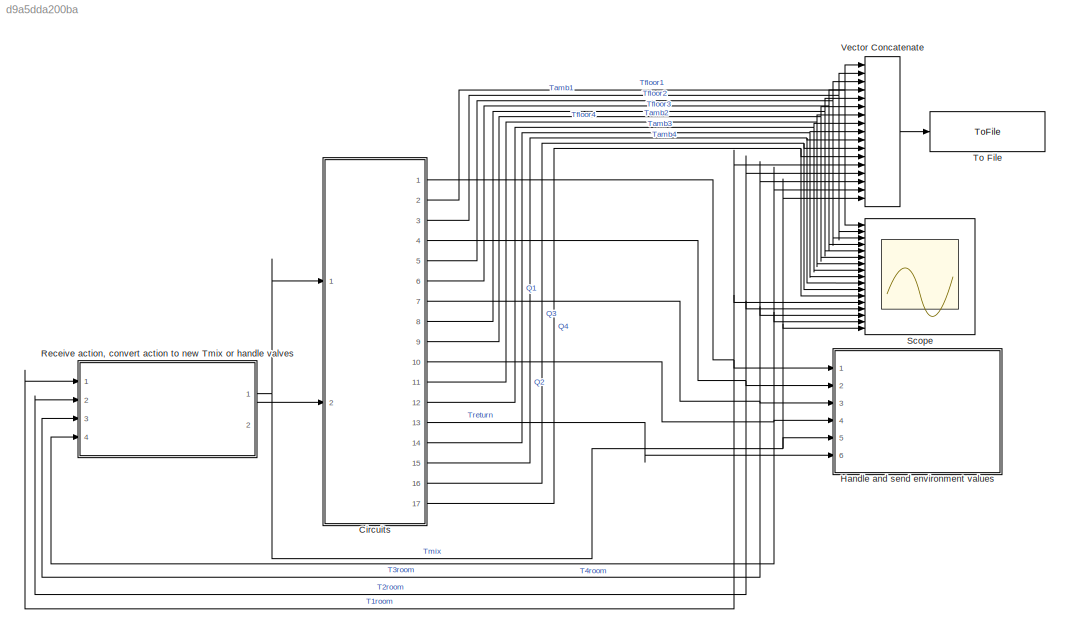
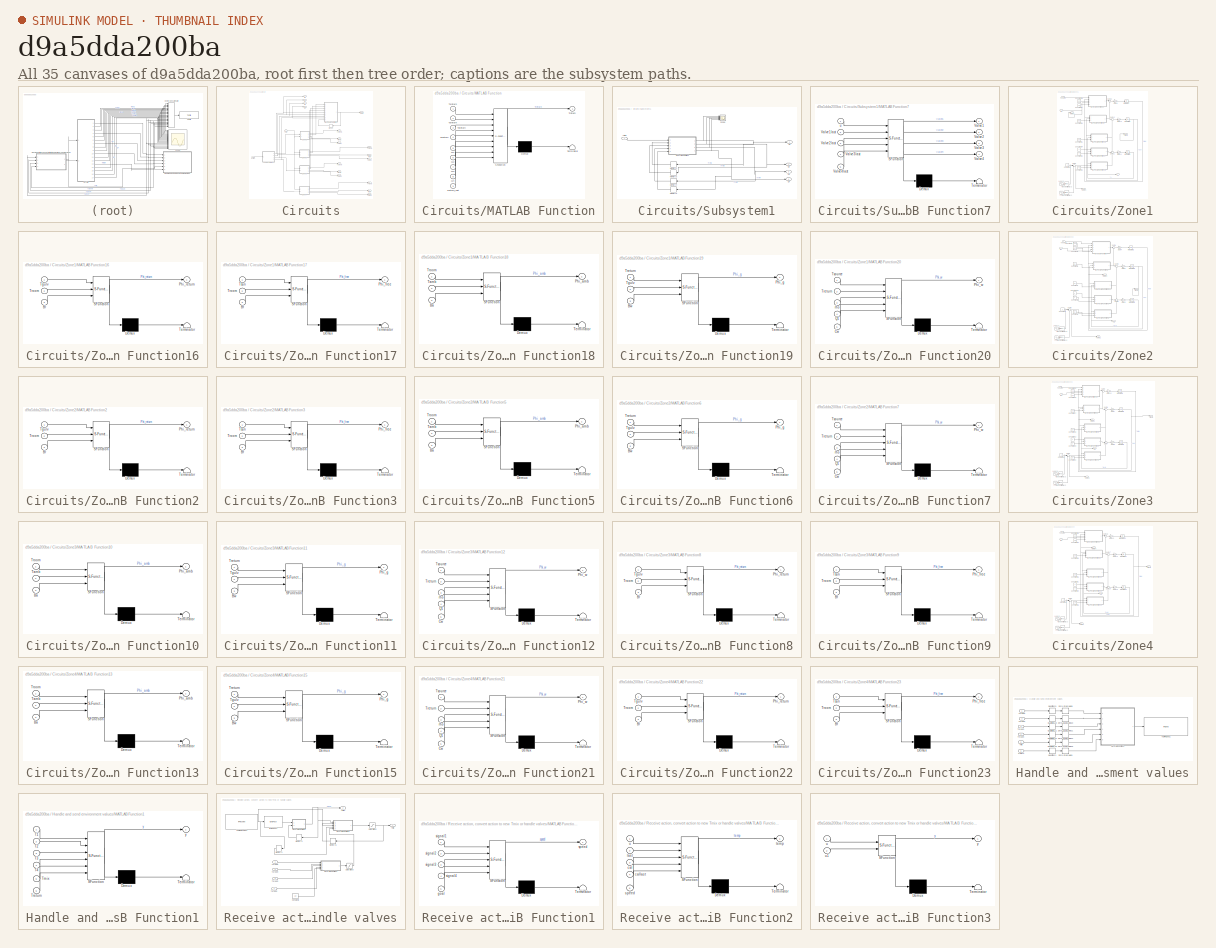
[diagram: thumbnail index - all 35 canvases of the model, root first then tree order]
MODEL slx_d9a5dda200ba
KIND model
CONFIG AbsTol = auto
CONFIG EnableMultiTasking = off
CONFIG FixedStep = auto
CONFIG MaxStep = auto
CONFIG MinStep = auto
CONFIG RelTol = 1e-3
CONFIG SampleTimeConstraint = Unconstrained
CONFIG Solver = VariableStepAuto
CONFIG SolverName = VariableStepAuto
CONFIG StartTime = 0.0
CONFIG StopTime = 1000000000
BLOCK [SubSystem] Circuits
  Ports = [2, 17]
  RequestExecContextInheritance = off
  Variant = off
BLOCK [SubSystem] Circuits/MATLAB Function
  ErrorFcn = Stateflow.Translate.translate
  PermitHierarchicalResolution = ExplicitOnly
  Ports = [9, 1]
  RequestExecContextInheritance = off
  SFBlockType = MATLAB Function
  TreatAsAtomicUnit = on
  Variant = off
BLOCK [Demux] Circuits/MATLAB Function/ Demux 
  Outputs = 1
  Ports = [1, 1]
BLOCK [S-Function] Circuits/MATLAB Function/ SFunction 
  EnableBusSupport = on
  FunctionName = sf_sfun
  PortCounts = [9 2]
  Ports = [9, 2]
  SFcnIsStateOwnerBlock = off
  SFunctionDeploymentMode = off
  Tag = Stateflow S-Function TestLevel_4_MODEL 10
BLOCK [Terminator] Circuits/MATLAB Function/ Terminator 
BLOCK [Inport] Circuits/MATLAB Function/Q1
  IconDisplay = Port number
  Port = 5
BLOCK [Inport] Circuits/MATLAB Function/Q2
  IconDisplay = Port number
  Port = 6
BLOCK [Inport] Circuits/MATLAB Function/Q3
  IconDisplay = Port number
  Port = 7
BLOCK [Inport] Circuits/MATLAB Function/Q4
  IconDisplay = Port number
  Port = 8
BLOCK [Inport] Circuits/MATLAB Function/T1return
  IconDisplay = Port number
BLOCK [Inport] Circuits/MATLAB Function/T2return
  IconDisplay = Port number
  Port = 2
BLOCK [Inport] Circuits/MATLAB Function/T3return
  IconDisplay = Port number
  Port = 3
BLOCK [Inport] Circuits/MATLAB Function/T4return
  IconDisplay = Port number
  Port = 4
BLOCK [Outport] Circuits/MATLAB Function/Treturn
  IconDisplay = Port number
BLOCK [Inport] Circuits/MATLAB Function/Treturn_last
  IconDisplay = Port number
  Port = 9
BLOCK [Memory] Circuits/Memory
BLOCK [Outport] Circuits/Q1
  IconDisplay = Port number
  Port = 14
BLOCK [Outport] Circuits/Q2
  IconDisplay = Port number
  Port = 15
BLOCK [Outport] Circuits/Q3
  IconDisplay = Port number
  Port = 16
BLOCK [Outport] Circuits/Q4
  IconDisplay = Port number
  Port = 17
BLOCK [SubSystem] Circuits/Subsystem1
  Ports = [1, 4]
  RequestExecContextInheritance = off
  Variant = off
BLOCK [Inport] Circuits/Subsystem1/Action 
  IconDisplay = Port number
BLOCK [SubSystem] Circuits/Subsystem1/MATLAB Function7
  ErrorFcn = Stateflow.Translate.translate
  PermitHierarchicalResolution = ExplicitOnly
  Ports = [5, 4]
  RequestExecContextInheritance = off
  SFBlockType = MATLAB Function
  TreatAsAtomicUnit = on
  Variant = off
BLOCK [Demux] Circuits/Subsystem1/MATLAB Function7/ Demux 
  Outputs = 1
  Ports = [1, 1]
BLOCK [S-Function] Circuits/Subsystem1/MATLAB Function7/ SFunction 
  EnableBusSupport = on
  FunctionName = sf_sfun
  PortCounts = [5 5]
  Ports = [5, 5]
  SFcnIsStateOwnerBlock = off
  SFunctionDeploymentMode = off
  Tag = Stateflow S-Function TestLevel_4_MODEL 30
BLOCK [Terminator] Circuits/Subsystem1/MATLAB Function7/ Terminator 
BLOCK [Outport] Circuits/Subsystem1/MATLAB Function7/Valve1
  IconDisplay = Port number
BLOCK [Inport] Circuits/Subsystem1/MATLAB Function7/Valve1last
  IconDisplay = Port number
  Port = 2
BLOCK [Outport] Circuits/Subsystem1/MATLAB Function7/Valve2
  IconDisplay = Port number
  Port = 2
BLOCK [Inport] Circuits/Subsystem1/MATLAB Function7/Valve2last
  IconDisplay = Port number
  Port = 3
BLOCK [Outport] Circuits/Subsystem1/MATLAB Function7/Valve3
  IconDisplay = Port number
  Port = 3
BLOCK [Inport] Circuits/Subsystem1/MATLAB Function7/Valve3last
  IconDisplay = Port number
  Port = 4
BLOCK [Outport] Circuits/Subsystem1/MATLAB Function7/Valve4
  IconDisplay = Port number
  Port = 4
BLOCK [Inport] Circuits/Subsystem1/MATLAB Function7/Valve4last
  IconDisplay = Port number
  Port = 5
BLOCK [Inport] Circuits/Subsystem1/MATLAB Function7/u
  IconDisplay = Port number
BLOCK [Memory] Circuits/Subsystem1/Memory2
BLOCK [Memory] Circuits/Subsystem1/Memory3
BLOCK [Memory] Circuits/Subsystem1/Memory4
BLOCK [Memory] Circuits/Subsystem1/Memory5
BLOCK [Outport] Circuits/Subsystem1/Q1 
  IconDisplay = Port number
BLOCK [Outport] Circuits/Subsystem1/Q2
  IconDisplay = Port number
  Port = 2
BLOCK [Outport] Circuits/Subsystem1/Q3
  IconDisplay = Port number
  Port = 3
BLOCK [Outport] Circuits/Subsystem1/Q4 
  IconDisplay = Port number
  Port = 4
BLOCK [Scope] Circuits/Subsystem1/Scope
  NumInputPorts = 4
  Ports = [4]
  ScopeSpecificationString = Simulink.scopes.TimeScopeBlockCfg('CurrentConfiguration', extmgr.ConfigurationSet(extmgr.Configuration('Core','General UI',true),extmgr.Configuration('Core','Source UI',true),extmgr.Configuration('Sources','WiredSimulink',true,'DataLoggingVariableName','ScopeData1'),extmgr.Configuration('Visuals','Time Domain',true,'SerializedDisplays',{struct('MinYLimReal','-0.000007','MaxYLimReal','0.000063','YL...<+1454ch>
BLOCK [Outport] Circuits/T1room
  IconDisplay = Port number
BLOCK [Outport] Circuits/T2room
  IconDisplay = Port number
  Port = 4
BLOCK [Outport] Circuits/T3room
  IconDisplay = Port number
  Port = 7
BLOCK [Outport] Circuits/T4room
  IconDisplay = Port number
  Port = 10
BLOCK [Outport] Circuits/Tamb1
  IconDisplay = Port number
  Port = 3
BLOCK [Outport] Circuits/Tamb2
  IconDisplay = Port number
  Port = 6
BLOCK [Outport] Circuits/Tamb3
  IconDisplay = Port number
  Port = 9
BLOCK [Outport] Circuits/Tamb4
  IconDisplay = Port number
  Port = 12
BLOCK [Outport] Circuits/Tfloor1
  IconDisplay = Port number
  Port = 2
BLOCK [Outport] Circuits/Tfloor2
  IconDisplay = Port number
  Port = 5
BLOCK [Outport] Circuits/Tfloor3
  IconDisplay = Port number
  Port = 8
BLOCK [Outport] Circuits/Tfloor4
  IconDisplay = Port number
  Port = 11
BLOCK [Inport] Circuits/Tmix
  IconDisplay = Port number
BLOCK [Outport] Circuits/Treturn
  IconDisplay = Port number
  Port = 13
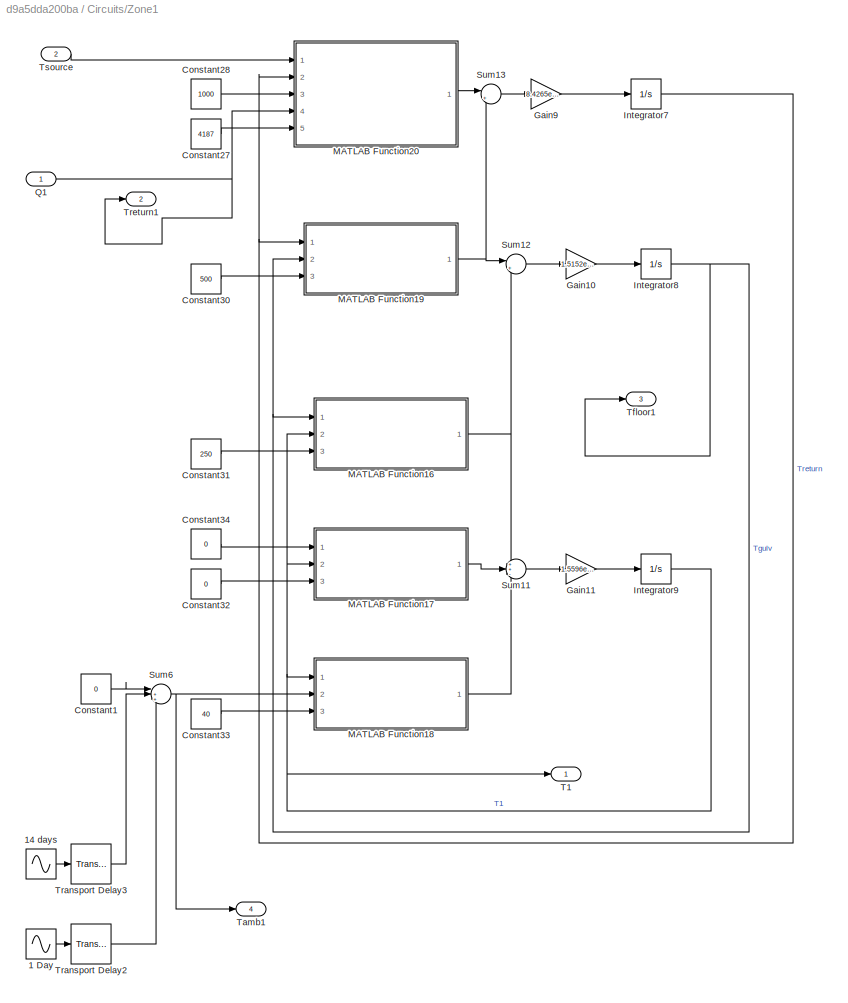
BLOCK [SubSystem] Circuits/Zone1
  Description = Zone1
  Ports = [2, 4]
  RequestExecContextInheritance = off
  Tag = Zone1
  Variant = off
BLOCK [Sin] Circuits/Zone1/1 Day
  Amplitude = 4
  Frequency = 0.00007272205216643
  Ports = [0, 1]
  SampleTime = 0
BLOCK [Sin] Circuits/Zone1/14 days
  Amplitude = 2
  Frequency = 0.00000519443
  Ports = [0, 1]
  SampleTime = 0
BLOCK [Constant] Circuits/Zone1/Constant1
  Value = 0
BLOCK [Constant] Circuits/Zone1/Constant27
  Value = 4187
BLOCK [Constant] Circuits/Zone1/Constant28
  Value = 1000
BLOCK [Constant] Circuits/Zone1/Constant30
  Value = 500
BLOCK [Constant] Circuits/Zone1/Constant31
  Value = 250
BLOCK [Constant] Circuits/Zone1/Constant32
  Value = 0
BLOCK [Constant] Circuits/Zone1/Constant33
  Value = 40
BLOCK [Constant] Circuits/Zone1/Constant34
  Value = 0
BLOCK [Gain] Circuits/Zone1/Gain10
  Gain = 1.5152e-07
  OutDataTypeStr = Inherit: Inherit via internal rule
  ParamDataTypeStr = Inherit: Inherit via internal rule
  SaturateOnIntegerOverflow = off
BLOCK [Gain] Circuits/Zone1/Gain11
  Gain = 1.5596e-05
  OutDataTypeStr = Inherit: Inherit via internal rule
  ParamDataTypeStr = Inherit: Inherit via internal rule
  SaturateOnIntegerOverflow = off
BLOCK [Gain] Circuits/Zone1/Gain9
  Gain = 8.4265e-06
  OutDataTypeStr = Inherit: Inherit via internal rule
  ParamDataTypeStr = Inherit: Inherit via internal rule
  SaturateOnIntegerOverflow = off
BLOCK [Integrator] Circuits/Zone1/Integrator7
  InitialCondition = 15
  Ports = [1, 1]
BLOCK [Integrator] Circuits/Zone1/Integrator8
  InitialCondition = 15
  Ports = [1, 1]
BLOCK [Integrator] Circuits/Zone1/Integrator9
  InitialCondition = 15
  Ports = [1, 1]
BLOCK [SubSystem] Circuits/Zone1/MATLAB Function16
  ErrorFcn = Stateflow.Translate.translate
  PermitHierarchicalResolution = ExplicitOnly
  Ports = [3, 1]
  RequestExecContextInheritance = off
  SFBlockType = MATLAB Function
  TreatAsAtomicUnit = on
  Variant = off
BLOCK [Demux] Circuits/Zone1/MATLAB Function16/ Demux 
  Outputs = 1
  Ports = [1, 1]
BLOCK [S-Function] Circuits/Zone1/MATLAB Function16/ SFunction 
  EnableBusSupport = on
  FunctionName = sf_sfun
  PortCounts = [3 2]
  Ports = [3, 2]
  SFcnIsStateOwnerBlock = off
  SFunctionDeploymentMode = off
  Tag = Stateflow S-Function TestLevel_4_MODEL 14
BLOCK [Terminator] Circuits/Zone1/MATLAB Function16/ Terminator 
BLOCK [Inport] Circuits/Zone1/MATLAB Function16/Br
  IconDisplay = Port number
  Port = 3
BLOCK [Outport] Circuits/Zone1/MATLAB Function16/Phi_return
  IconDisplay = Port number
BLOCK [Inport] Circuits/Zone1/MATLAB Function16/Tgulv
  IconDisplay = Port number
BLOCK [Inport] Circuits/Zone1/MATLAB Function16/Troom
  IconDisplay = Port number
  Port = 2
BLOCK [SubSystem] Circuits/Zone1/MATLAB Function17
  ErrorFcn = Stateflow.Translate.translate
  PermitHierarchicalResolution = ExplicitOnly
  Ports = [3, 1]
  RequestExecContextInheritance = off
  SFBlockType = MATLAB Function
  TreatAsAtomicUnit = on
  Variant = off
BLOCK [Demux] Circuits/Zone1/MATLAB Function17/ Demux 
  Outputs = 1
  Ports = [1, 1]
BLOCK [S-Function] Circuits/Zone1/MATLAB Function17/ SFunction 
  EnableBusSupport = on
  FunctionName = sf_sfun
  PortCounts = [3 2]
  Ports = [3, 2]
  SFcnIsStateOwnerBlock = off
  SFunctionDeploymentMode = off
  Tag = Stateflow S-Function TestLevel_4_MODEL 16
BLOCK [Terminator] Circuits/Zone1/MATLAB Function17/ Terminator 
BLOCK [Inport] Circuits/Zone1/MATLAB Function17/Bf
  IconDisplay = Port number
  Port = 3
BLOCK [Outport] Circuits/Zone1/MATLAB Function17/Phi_free
  IconDisplay = Port number
BLOCK [Inport] Circuits/Zone1/MATLAB Function17/Troom
  IconDisplay = Port number
  Port = 2
BLOCK [Inport] Circuits/Zone1/MATLAB Function17/Tsun
  IconDisplay = Port number
BLOCK [SubSystem] Circuits/Zone1/MATLAB Function18
  ErrorFcn = Stateflow.Translate.translate
  PermitHierarchicalResolution = ExplicitOnly
  Ports = [3, 1]
  RequestExecContextInheritance = off
  SFBlockType = MATLAB Function
  TreatAsAtomicUnit = on
  Variant = off
BLOCK [Demux] Circuits/Zone1/MATLAB Function18/ Demux 
  Outputs = 1
  Ports = [1, 1]
BLOCK [S-Function] Circuits/Zone1/MATLAB Function18/ SFunction 
  EnableBusSupport = on
  FunctionName = sf_sfun
  PortCounts = [3 2]
  Ports = [3, 2]
  SFcnIsStateOwnerBlock = off
  SFunctionDeploymentMode = off
  Tag = Stateflow S-Function TestLevel_4_MODEL 22
BLOCK [Terminator] Circuits/Zone1/MATLAB Function18/ Terminator 
BLOCK [Inport] Circuits/Zone1/MATLAB Function18/Ba
  IconDisplay = Port number
  Port = 3
BLOCK [Outport] Circuits/Zone1/MATLAB Function18/Phi_amb
  IconDisplay = Port number
BLOCK [Inport] Circuits/Zone1/MATLAB Function18/Tamb
  IconDisplay = Port number
  Port = 2
BLOCK [Inport] Circuits/Zone1/MATLAB Function18/Troom
  IconDisplay = Port number
BLOCK [SubSystem] Circuits/Zone1/MATLAB Function19
  ErrorFcn = Stateflow.Translate.translate
  PermitHierarchicalResolution = ExplicitOnly
  Ports = [3, 1]
  RequestExecContextInheritance = off
  SFBlockType = MATLAB Function
  TreatAsAtomicUnit = on
  Variant = off
BLOCK [Demux] Circuits/Zone1/MATLAB Function19/ Demux 
  Outputs = 1
  Ports = [1, 1]
BLOCK [S-Function] Circuits/Zone1/MATLAB Function19/ SFunction 
  EnableBusSupport = on
  FunctionName = sf_sfun
  PortCounts = [3 2]
  Ports = [3, 2]
  SFcnIsStateOwnerBlock = off
  SFunctionDeploymentMode = off
  Tag = Stateflow S-Function TestLevel_4_MODEL 23
BLOCK [Terminator] Circuits/Zone1/MATLAB Function19/ Terminator 
BLOCK [Inport] Circuits/Zone1/MATLAB Function19/Bw
  IconDisplay = Port number
  Port = 3
BLOCK [Outport] Circuits/Zone1/MATLAB Function19/Phi_g
  IconDisplay = Port number
BLOCK [Inport] Circuits/Zone1/MATLAB Function19/Tgulv
  IconDisplay = Port number
  Port = 2
BLOCK [Inport] Circuits/Zone1/MATLAB Function19/Treturn
  IconDisplay = Port number
BLOCK [SubSystem] Circuits/Zone1/MATLAB Function20
  ErrorFcn = Stateflow.Translate.translate
  PermitHierarchicalResolution = ExplicitOnly
  Ports = [5, 1]
  RequestExecContextInheritance = off
  SFBlockType = MATLAB Function
  TreatAsAtomicUnit = on
  Variant = off
BLOCK [Demux] Circuits/Zone1/MATLAB Function20/ Demux 
  Outputs = 1
  Ports = [1, 1]
BLOCK [S-Function] Circuits/Zone1/MATLAB Function20/ SFunction 
  EnableBusSupport = on
  FunctionName = sf_sfun
  PortCounts = [5 2]
  Ports = [5, 2]
  SFcnIsStateOwnerBlock = off
  SFunctionDeploymentMode = off
  Tag = Stateflow S-Function TestLevel_4_MODEL 24
BLOCK [Terminator] Circuits/Zone1/MATLAB Function20/ Terminator 
BLOCK [Inport] Circuits/Zone1/MATLAB Function20/Cw
  IconDisplay = Port number
  Port = 5
BLOCK [Outport] Circuits/Zone1/MATLAB Function20/Phi_w
  IconDisplay = Port number
BLOCK [Inport] Circuits/Zone1/MATLAB Function20/Q1
  IconDisplay = Port number
  Port = 4
BLOCK [Inport] Circuits/Zone1/MATLAB Function20/Treturn
  IconDisplay = Port number
  Port = 2
BLOCK [Inport] Circuits/Zone1/MATLAB Function20/Tsource
  IconDisplay = Port number
BLOCK [Inport] Circuits/Zone1/MATLAB Function20/rho
  IconDisplay = Port number
  Port = 3
BLOCK [Inport] Circuits/Zone1/Q1 
  IconDisplay = Port number
BLOCK [Sum] Circuits/Zone1/Sum11
  IconShape = round
  InputSameDT = off
  Inputs = ++-
  OutDataTypeStr = Inherit: Inherit via internal rule
  Ports = [3, 1]
  SaturateOnIntegerOverflow = off
BLOCK [Sum] Circuits/Zone1/Sum12
  IconShape = round
  InputSameDT = off
  Inputs = |+-
  OutDataTypeStr = Inherit: Inherit via internal rule
  Ports = [2, 1]
  SaturateOnIntegerOverflow = off
BLOCK [Sum] Circuits/Zone1/Sum13
  IconShape = round
  InputSameDT = off
  Inputs = |+-
  OutDataTypeStr = Inherit: Inherit via internal rule
  Ports = [2, 1]
  SaturateOnIntegerOverflow = off
BLOCK [Sum] Circuits/Zone1/Sum6
  IconShape = round
  InputSameDT = off
  Inputs = |+++
  OutDataTypeStr = Inherit: Inherit via internal rule
  Ports = [3, 1]
  SaturateOnIntegerOverflow = off
BLOCK [Outport] Circuits/Zone1/T1
  IconDisplay = Port number
BLOCK [Outport] Circuits/Zone1/Tamb1 
  IconDisplay = Port number
  Port = 4
BLOCK [Outport] Circuits/Zone1/Tfloor1 
  IconDisplay = Port number
  Port = 3
BLOCK [TransportDelay] Circuits/Zone1/Transport Delay2
  DelayTime = 15000000
  Ports = [1, 1]
BLOCK [TransportDelay] Circuits/Zone1/Transport Delay3
  DelayTime = 10000000
  Ports = [1, 1]
BLOCK [Outport] Circuits/Zone1/Treturn1 
  IconDisplay = Port number
  Port = 2
BLOCK [Inport] Circuits/Zone1/Tsource
  IconDisplay = Port number
  Port = 2
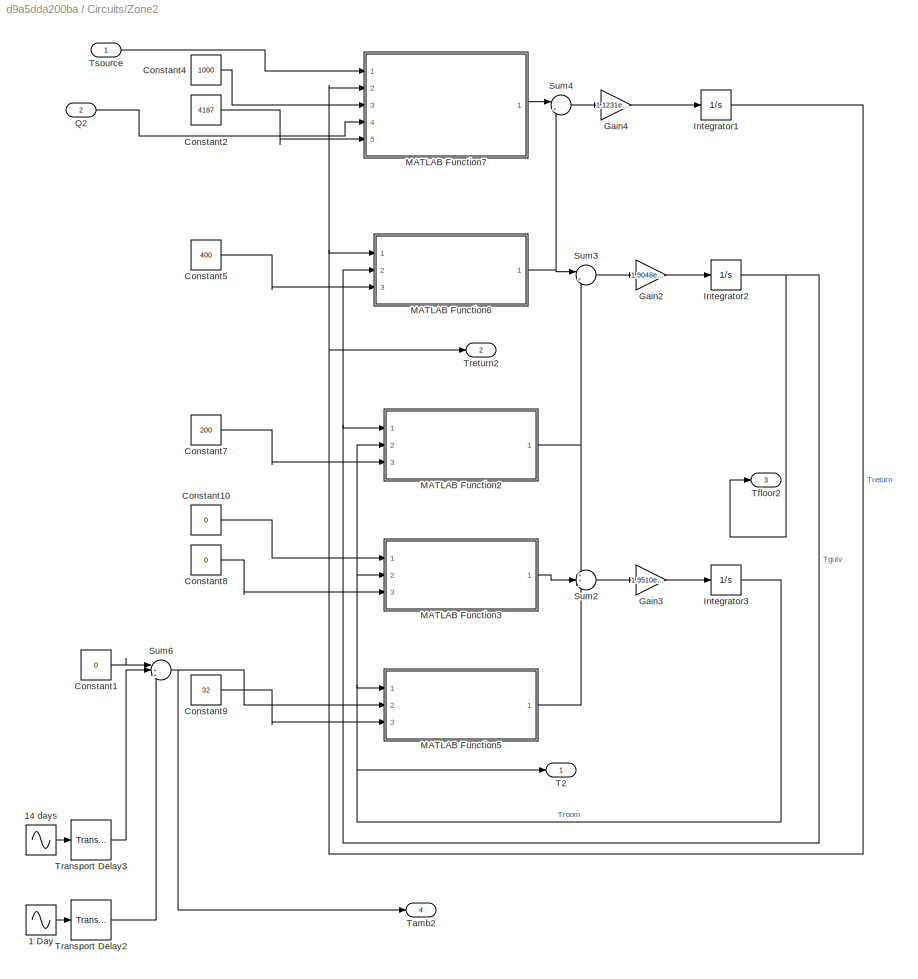
BLOCK [SubSystem] Circuits/Zone2
  Ports = [2, 4]
  RequestExecContextInheritance = off
  Variant = off
BLOCK [Sin] Circuits/Zone2/1 Day
  Amplitude = 4
  Frequency = 0.00007272205216643
  Ports = [0, 1]
  SampleTime = 0
BLOCK [Sin] Circuits/Zone2/14 days
  Amplitude = 2
  Frequency = 0.00000519443
  Ports = [0, 1]
  SampleTime = 0
BLOCK [Constant] Circuits/Zone2/Constant1
  Value = 0
BLOCK [Constant] Circuits/Zone2/Constant10
  Value = 0
BLOCK [Constant] Circuits/Zone2/Constant2
  Value = 4187
BLOCK [Constant] Circuits/Zone2/Constant4
  Value = 1000
BLOCK [Constant] Circuits/Zone2/Constant5
  Value = 400
BLOCK [Constant] Circuits/Zone2/Constant7
  Value = 200
BLOCK [Constant] Circuits/Zone2/Constant8
  Value = 0
BLOCK [Constant] Circuits/Zone2/Constant9
  Value = 32
BLOCK [Gain] Circuits/Zone2/Gain2
  Gain = 1.9048e-07
  OutDataTypeStr = Inherit: Inherit via internal rule
  ParamDataTypeStr = Inherit: Inherit via internal rule
  SaturateOnIntegerOverflow = off
BLOCK [Gain] Circuits/Zone2/Gain3
  Gain = 1.9510e-05
  OutDataTypeStr = Inherit: Inherit via internal rule
  ParamDataTypeStr = Inherit: Inherit via internal rule
  SaturateOnIntegerOverflow = off
BLOCK [Gain] Circuits/Zone2/Gain4
  Gain = 1.1231e-05
  OutDataTypeStr = Inherit: Inherit via internal rule
  ParamDataTypeStr = Inherit: Inherit via internal rule
  SaturateOnIntegerOverflow = off
BLOCK [Integrator] Circuits/Zone2/Integrator1
  InitialCondition = 15
  Ports = [1, 1]
BLOCK [Integrator] Circuits/Zone2/Integrator2
  InitialCondition = 15
  Ports = [1, 1]
BLOCK [Integrator] Circuits/Zone2/Integrator3
  InitialCondition = 15
  Ports = [1, 1]
BLOCK [SubSystem] Circuits/Zone2/MATLAB Function2
  ErrorFcn = Stateflow.Translate.translate
  PermitHierarchicalResolution = ExplicitOnly
  Ports = [3, 1]
  RequestExecContextInheritance = off
  SFBlockType = MATLAB Function
  TreatAsAtomicUnit = on
  Variant = off
BLOCK [Demux] Circuits/Zone2/MATLAB Function2/ Demux 
  Outputs = 1
  Ports = [1, 1]
BLOCK [S-Function] Circuits/Zone2/MATLAB Function2/ SFunction 
  EnableBusSupport = on
  FunctionName = sf_sfun
  PortCounts = [3 2]
  Ports = [3, 2]
  SFcnIsStateOwnerBlock = off
  SFunctionDeploymentMode = off
  Tag = Stateflow S-Function TestLevel_4_MODEL 29
BLOCK [Terminator] Circuits/Zone2/MATLAB Function2/ Terminator 
BLOCK [Inport] Circuits/Zone2/MATLAB Function2/Br
  IconDisplay = Port number
  Port = 3
BLOCK [Outport] Circuits/Zone2/MATLAB Function2/Phi_return
  IconDisplay = Port number
BLOCK [Inport] Circuits/Zone2/MATLAB Function2/Tgulv
  IconDisplay = Port number
BLOCK [Inport] Circuits/Zone2/MATLAB Function2/Troom
  IconDisplay = Port number
  Port = 2
BLOCK [SubSystem] Circuits/Zone2/MATLAB Function3
  ErrorFcn = Stateflow.Translate.translate
  PermitHierarchicalResolution = ExplicitOnly
  Ports = [3, 1]
  RequestExecContextInheritance = off
  SFBlockType = MATLAB Function
  TreatAsAtomicUnit = on
  Variant = off
BLOCK [Demux] Circuits/Zone2/MATLAB Function3/ Demux 
  Outputs = 1
  Ports = [1, 1]
BLOCK [S-Function] Circuits/Zone2/MATLAB Function3/ SFunction 
  EnableBusSupport = on
  FunctionName = sf_sfun
  PortCounts = [3 2]
  Ports = [3, 2]
  SFcnIsStateOwnerBlock = off
  SFunctionDeploymentMode = off
  Tag = Stateflow S-Function TestLevel_4_MODEL 32
BLOCK [Terminator] Circuits/Zone2/MATLAB Function3/ Terminator 
BLOCK [Inport] Circuits/Zone2/MATLAB Function3/Bf
  IconDisplay = Port number
  Port = 3
BLOCK [Outport] Circuits/Zone2/MATLAB Function3/Phi_free
  IconDisplay = Port number
BLOCK [Inport] Circuits/Zone2/MATLAB Function3/Troom
  IconDisplay = Port number
  Port = 2
BLOCK [Inport] Circuits/Zone2/MATLAB Function3/Tsun
  IconDisplay = Port number
BLOCK [SubSystem] Circuits/Zone2/MATLAB Function5
  ErrorFcn = Stateflow.Translate.translate
  PermitHierarchicalResolution = ExplicitOnly
  Ports = [3, 1]
  RequestExecContextInheritance = off
  SFBlockType = MATLAB Function
  TreatAsAtomicUnit = on
  Variant = off
BLOCK [Demux] Circuits/Zone2/MATLAB Function5/ Demux 
  Outputs = 1
  Ports = [1, 1]
BLOCK [S-Function] Circuits/Zone2/MATLAB Function5/ SFunction 
  EnableBusSupport = on
  FunctionName = sf_sfun
  PortCounts = [3 2]
  Ports = [3, 2]
  SFcnIsStateOwnerBlock = off
  SFunctionDeploymentMode = off
  Tag = Stateflow S-Function TestLevel_4_MODEL 33
BLOCK [Terminator] Circuits/Zone2/MATLAB Function5/ Terminator 
BLOCK [Inport] Circuits/Zone2/MATLAB Function5/Ba
  IconDisplay = Port number
  Port = 3
BLOCK [Outport] Circuits/Zone2/MATLAB Function5/Phi_amb
  IconDisplay = Port number
BLOCK [Inport] Circuits/Zone2/MATLAB Function5/Tamb
  IconDisplay = Port number
  Port = 2
BLOCK [Inport] Circuits/Zone2/MATLAB Function5/Troom
  IconDisplay = Port number
BLOCK [SubSystem] Circuits/Zone2/MATLAB Function6
  ErrorFcn = Stateflow.Translate.translate
  PermitHierarchicalResolution = ExplicitOnly
  Ports = [3, 1]
  RequestExecContextInheritance = off
  SFBlockType = MATLAB Function
  TreatAsAtomicUnit = on
  Variant = off
BLOCK [Demux] Circuits/Zone2/MATLAB Function6/ Demux 
  Outputs = 1
  Ports = [1, 1]
BLOCK [S-Function] Circuits/Zone2/MATLAB Function6/ SFunction 
  EnableBusSupport = on
  FunctionName = sf_sfun
  PortCounts = [3 2]
  Ports = [3, 2]
  SFcnIsStateOwnerBlock = off
  SFunctionDeploymentMode = off
  Tag = Stateflow S-Function TestLevel_4_MODEL 34
BLOCK [Terminator] Circuits/Zone2/MATLAB Function6/ Terminator 
BLOCK [Inport] Circuits/Zone2/MATLAB Function6/Bw
  IconDisplay = Port number
  Port = 3
BLOCK [Outport] Circuits/Zone2/MATLAB Function6/Phi_g
  IconDisplay = Port number
BLOCK [Inport] Circuits/Zone2/MATLAB Function6/Tgulv
  IconDisplay = Port number
  Port = 2
BLOCK [Inport] Circuits/Zone2/MATLAB Function6/Treturn
  IconDisplay = Port number
BLOCK [SubSystem] Circuits/Zone2/MATLAB Function7
  ErrorFcn = Stateflow.Translate.translate
  PermitHierarchicalResolution = ExplicitOnly
  Ports = [5, 1]
  RequestExecContextInheritance = off
  SFBlockType = MATLAB Function
  TreatAsAtomicUnit = on
  Variant = off
BLOCK [Demux] Circuits/Zone2/MATLAB Function7/ Demux 
  Outputs = 1
  Ports = [1, 1]
BLOCK [S-Function] Circuits/Zone2/MATLAB Function7/ SFunction 
  EnableBusSupport = on
  FunctionName = sf_sfun
  PortCounts = [5 2]
  Ports = [5, 2]
  SFcnIsStateOwnerBlock = off
  SFunctionDeploymentMode = off
  Tag = Stateflow S-Function TestLevel_4_MODEL 35
BLOCK [Terminator] Circuits/Zone2/MATLAB Function7/ Terminator 
BLOCK [Inport] Circuits/Zone2/MATLAB Function7/Cw
  IconDisplay = Port number
  Port = 5
BLOCK [Outport] Circuits/Zone2/MATLAB Function7/Phi_w
  IconDisplay = Port number
BLOCK [Inport] Circuits/Zone2/MATLAB Function7/Q1
  IconDisplay = Port number
  Port = 4
BLOCK [Inport] Circuits/Zone2/MATLAB Function7/Treturn
  IconDisplay = Port number
  Port = 2
BLOCK [Inport] Circuits/Zone2/MATLAB Function7/Tsource
  IconDisplay = Port number
BLOCK [Inport] Circuits/Zone2/MATLAB Function7/rho
  IconDisplay = Port number
  Port = 3
BLOCK [Inport] Circuits/Zone2/Q2 
  IconDisplay = Port number
  Port = 2
BLOCK [Sum] Circuits/Zone2/Sum2
  IconShape = round
  InputSameDT = off
  Inputs = ++-
  OutDataTypeStr = Inherit: Inherit via internal rule
  Ports = [3, 1]
  SaturateOnIntegerOverflow = off
BLOCK [Sum] Circuits/Zone2/Sum3
  IconShape = round
  InputSameDT = off
  Inputs = |+-
  OutDataTypeStr = Inherit: Inherit via internal rule
  Ports = [2, 1]
  SaturateOnIntegerOverflow = off
BLOCK [Sum] Circuits/Zone2/Sum4
  IconShape = round
  InputSameDT = off
  Inputs = |+-
  OutDataTypeStr = Inherit: Inherit via internal rule
  Ports = [2, 1]
  SaturateOnIntegerOverflow = off
BLOCK [Sum] Circuits/Zone2/Sum6
  IconShape = round
  InputSameDT = off
  Inputs = |+++
  OutDataTypeStr = Inherit: Inherit via internal rule
  Ports = [3, 1]
  SaturateOnIntegerOverflow = off
BLOCK [Outport] Circuits/Zone2/T2 
  IconDisplay = Port number
BLOCK [Outport] Circuits/Zone2/Tamb2 
  IconDisplay = Port number
  Port = 4
BLOCK [Outport] Circuits/Zone2/Tfloor2 
  IconDisplay = Port number
  Port = 3
BLOCK [TransportDelay] Circuits/Zone2/Transport Delay2
  DelayTime = 15000000
  Ports = [1, 1]
BLOCK [TransportDelay] Circuits/Zone2/Transport Delay3
  DelayTime = 10000000
  Ports = [1, 1]
BLOCK [Outport] Circuits/Zone2/Treturn2 
  IconDisplay = Port number
  Port = 2
BLOCK [Inport] Circuits/Zone2/Tsource
  IconDisplay = Port number
BLOCK [SubSystem] Circuits/Zone3
  Ports = [2, 4]
  RequestExecContextInheritance = off
  Variant = off
BLOCK [Sin] Circuits/Zone3/1 Day
  Amplitude = 4
  Frequency = 0.00007272205216643
  Ports = [0, 1]
  SampleTime = 0
BLOCK [Sin] Circuits/Zone3/14 days
  Amplitude = 2
  Frequency = 0.00000519443
  Ports = [0, 1]
  SampleTime = 0
BLOCK [Constant] Circuits/Zone3/Constant1
  Value = 0
BLOCK [Constant] Circuits/Zone3/Constant12
  Value = 0
BLOCK [Constant] Circuits/Zone3/Constant15
  Value = 4187
BLOCK [Constant] Circuits/Zone3/Constant16
  Value = 1000
BLOCK [Constant] Circuits/Zone3/Constant17
  Value = 1000
BLOCK [Constant] Circuits/Zone3/Constant18
  Value = 500
BLOCK [Constant] Circuits/Zone3/Constant19
  Value = 0
BLOCK [Constant] Circuits/Zone3/Constant20
  Value = 80
BLOCK [Gain] Circuits/Zone3/Gain12
  Gain = 4.4346e-06
  OutDataTypeStr = Inherit: Inherit via internal rule
  ParamDataTypeStr = Inherit: Inherit via internal rule
  SaturateOnIntegerOverflow = off
BLOCK [Gain] Circuits/Zone3/Gain7
  Gain = 7.5758e-08
  OutDataTypeStr = Inherit: Inherit via internal rule
  ParamDataTypeStr = Inherit: Inherit via internal rule
  SaturateOnIntegerOverflow = off
BLOCK [Gain] Circuits/Zone3/Gain8
  Gain = 7.7980e-06
  OutDataTypeStr = Inherit: Inherit via internal rule
  ParamDataTypeStr = Inherit: Inherit via internal rule
  SaturateOnIntegerOverflow = off
BLOCK [Integrator] Circuits/Zone3/Integrator4
  InitialCondition = 15
  Ports = [1, 1]
BLOCK [Integrator] Circuits/Zone3/Integrator5
  InitialCondition = 15
  Ports = [1, 1]
BLOCK [Integrator] Circuits/Zone3/Integrator6
  InitialCondition = 15
  Ports = [1, 1]
BLOCK [SubSystem] Circuits/Zone3/MATLAB Function10
  ErrorFcn = Stateflow.Translate.translate
  PermitHierarchicalResolution = ExplicitOnly
  Ports = [3, 1]
  RequestExecContextInheritance = off
  SFBlockType = MATLAB Function
  TreatAsAtomicUnit = on
  Variant = off
BLOCK [Demux] Circuits/Zone3/MATLAB Function10/ Demux 
  Outputs = 1
  Ports = [1, 1]
BLOCK [S-Function] Circuits/Zone3/MATLAB Function10/ SFunction 
  EnableBusSupport = on
  FunctionName = sf_sfun
  PortCounts = [3 2]
  Ports = [3, 2]
  SFcnIsStateOwnerBlock = off
  SFunctionDeploymentMode = off
  Tag = Stateflow S-Function TestLevel_4_MODEL 36
BLOCK [Terminator] Circuits/Zone3/MATLAB Function10/ Terminator 
BLOCK [Inport] Circuits/Zone3/MATLAB Function10/Ba
  IconDisplay = Port number
  Port = 3
BLOCK [Outport] Circuits/Zone3/MATLAB Function10/Phi_amb
  IconDisplay = Port number
BLOCK [Inport] Circuits/Zone3/MATLAB Function10/Tamb
  IconDisplay = Port number
  Port = 2
BLOCK [Inport] Circuits/Zone3/MATLAB Function10/Troom
  IconDisplay = Port number
BLOCK [SubSystem] Circuits/Zone3/MATLAB Function11
  ErrorFcn = Stateflow.Translate.translate
  PermitHierarchicalResolution = ExplicitOnly
  Ports = [3, 1]
  RequestExecContextInheritance = off
  SFBlockType = MATLAB Function
  TreatAsAtomicUnit = on
  Variant = off
BLOCK [Demux] Circuits/Zone3/MATLAB Function11/ Demux 
  Outputs = 1
  Ports = [1, 1]
BLOCK [S-Function] Circuits/Zone3/MATLAB Function11/ SFunction 
  EnableBusSupport = on
  FunctionName = sf_sfun
  PortCounts = [3 2]
  Ports = [3, 2]
  SFcnIsStateOwnerBlock = off
  SFunctionDeploymentMode = off
  Tag = Stateflow S-Function TestLevel_4_MODEL 37
BLOCK [Terminator] Circuits/Zone3/MATLAB Function11/ Terminator 
BLOCK [Inport] Circuits/Zone3/MATLAB Function11/Bw
  IconDisplay = Port number
  Port = 3
BLOCK [Outport] Circuits/Zone3/MATLAB Function11/Phi_g
  IconDisplay = Port number
BLOCK [Inport] Circuits/Zone3/MATLAB Function11/Tgulv
  IconDisplay = Port number
  Port = 2
BLOCK [Inport] Circuits/Zone3/MATLAB Function11/Treturn
  IconDisplay = Port number
BLOCK [SubSystem] Circuits/Zone3/MATLAB Function12
  ErrorFcn = Stateflow.Translate.translate
  PermitHierarchicalResolution = ExplicitOnly
  Ports = [5, 1]
  RequestExecContextInheritance = off
  SFBlockType = MATLAB Function
  TreatAsAtomicUnit = on
  Variant = off
BLOCK [Demux] Circuits/Zone3/MATLAB Function12/ Demux 
  Outputs = 1
  Ports = [1, 1]
BLOCK [S-Function] Circuits/Zone3/MATLAB Function12/ SFunction 
  EnableBusSupport = on
  FunctionName = sf_sfun
  PortCounts = [5 2]
  Ports = [5, 2]
  SFcnIsStateOwnerBlock = off
  SFunctionDeploymentMode = off
  Tag = Stateflow S-Function TestLevel_4_MODEL 38
BLOCK [Terminator] Circuits/Zone3/MATLAB Function12/ Terminator 
BLOCK [Inport] Circuits/Zone3/MATLAB Function12/Cw
  IconDisplay = Port number
  Port = 5
BLOCK [Outport] Circuits/Zone3/MATLAB Function12/Phi_w
  IconDisplay = Port number
BLOCK [Inport] Circuits/Zone3/MATLAB Function12/Q1
  IconDisplay = Port number
  Port = 4
BLOCK [Inport] Circuits/Zone3/MATLAB Function12/Treturn
  IconDisplay = Port number
  Port = 2
BLOCK [Inport] Circuits/Zone3/MATLAB Function12/Tsource
  IconDisplay = Port number
BLOCK [Inport] Circuits/Zone3/MATLAB Function12/rho
  IconDisplay = Port number
  Port = 3
BLOCK [SubSystem] Circuits/Zone3/MATLAB Function8
  ErrorFcn = Stateflow.Translate.translate
  PermitHierarchicalResolution = ExplicitOnly
  Ports = [3, 1]
  RequestExecContextInheritance = off
  SFBlockType = MATLAB Function
  TreatAsAtomicUnit = on
  Variant = off
BLOCK [Demux] Circuits/Zone3/MATLAB Function8/ Demux 
  Outputs = 1
  Ports = [1, 1]
BLOCK [S-Function] Circuits/Zone3/MATLAB Function8/ SFunction 
  EnableBusSupport = on
  FunctionName = sf_sfun
  PortCounts = [3 2]
  Ports = [3, 2]
  SFcnIsStateOwnerBlock = off
  SFunctionDeploymentMode = off
  Tag = Stateflow S-Function TestLevel_4_MODEL 39
BLOCK [Terminator] Circuits/Zone3/MATLAB Function8/ Terminator 
BLOCK [Inport] Circuits/Zone3/MATLAB Function8/Br
  IconDisplay = Port number
  Port = 3
BLOCK [Outport] Circuits/Zone3/MATLAB Function8/Phi_return
  IconDisplay = Port number
BLOCK [Inport] Circuits/Zone3/MATLAB Function8/Tgulv
  IconDisplay = Port number
BLOCK [Inport] Circuits/Zone3/MATLAB Function8/Troom
  IconDisplay = Port number
  Port = 2
BLOCK [SubSystem] Circuits/Zone3/MATLAB Function9
  ErrorFcn = Stateflow.Translate.translate
  PermitHierarchicalResolution = ExplicitOnly
  Ports = [3, 1]
  RequestExecContextInheritance = off
  SFBlockType = MATLAB Function
  TreatAsAtomicUnit = on
  Variant = off
BLOCK [Demux] Circuits/Zone3/MATLAB Function9/ Demux 
  Outputs = 1
  Ports = [1, 1]
BLOCK [S-Function] Circuits/Zone3/MATLAB Function9/ SFunction 
  EnableBusSupport = on
  FunctionName = sf_sfun
  PortCounts = [3 2]
  Ports = [3, 2]
  SFcnIsStateOwnerBlock = off
  SFunctionDeploymentMode = off
  Tag = Stateflow S-Function TestLevel_4_MODEL 40
BLOCK [Terminator] Circuits/Zone3/MATLAB Function9/ Terminator 
BLOCK [Inport] Circuits/Zone3/MATLAB Function9/Bf
  IconDisplay = Port number
  Port = 3
BLOCK [Outport] Circuits/Zone3/MATLAB Function9/Phi_free
  IconDisplay = Port number
BLOCK [Inport] Circuits/Zone3/MATLAB Function9/Troom
  IconDisplay = Port number
  Port = 2
BLOCK [Inport] Circuits/Zone3/MATLAB Function9/Tsun
  IconDisplay = Port number
BLOCK [Inport] Circuits/Zone3/Q3 
  IconDisplay = Port number
  Port = 2
BLOCK [Sum] Circuits/Zone3/Sum6
  IconShape = round
  InputSameDT = off
  Inputs = |+++
  OutDataTypeStr = Inherit: Inherit via internal rule
  Ports = [3, 1]
  SaturateOnIntegerOverflow = off
BLOCK [Sum] Circuits/Zone3/Sum7
  IconShape = round
  InputSameDT = off
  Inputs = ++-
  OutDataTypeStr = Inherit: Inherit via internal rule
  Ports = [3, 1]
  SaturateOnIntegerOverflow = off
BLOCK [Sum] Circuits/Zone3/Sum8
  IconShape = round
  InputSameDT = off
  Inputs = |+-
  OutDataTypeStr = Inherit: Inherit via internal rule
  Ports = [2, 1]
  SaturateOnIntegerOverflow = off
BLOCK [Sum] Circuits/Zone3/Sum9
  IconShape = round
  InputSameDT = off
  Inputs = |+-
  OutDataTypeStr = Inherit: Inherit via internal rule
  Ports = [2, 1]
  SaturateOnIntegerOverflow = off
BLOCK [Outport] Circuits/Zone3/T3
  IconDisplay = Port number
BLOCK [Outport] Circuits/Zone3/Tamb3 
  IconDisplay = Port number
  Port = 4
BLOCK [Outport] Circuits/Zone3/Tfloor3
  IconDisplay = Port number
  Port = 3
BLOCK [TransportDelay] Circuits/Zone3/Transport Delay2
  DelayTime = 15000000
  Ports = [1, 1]
BLOCK [TransportDelay] Circuits/Zone3/Transport Delay3
  DelayTime = 10000000
  Ports = [1, 1]
BLOCK [Outport] Circuits/Zone3/Treturn3 
  IconDisplay = Port number
  Port = 2
BLOCK [Inport] Circuits/Zone3/Tsource
  IconDisplay = Port number
BLOCK [SubSystem] Circuits/Zone4
  Ports = [2, 4]
  RequestExecContextInheritance = off
  Variant = off
BLOCK [Sin] Circuits/Zone4/1 Day
  Amplitude = 4
  Frequency = 0.00007272205216643
  Ports = [0, 1]
  SampleTime = 0
BLOCK [Sin] Circuits/Zone4/14 days
  Amplitude = 2
  Frequency = 0.00000519443
  Ports = [0, 1]
  SampleTime = 0
BLOCK [Constant] Circuits/Zone4/Constant1
  Value = 0
BLOCK [Constant] Circuits/Zone4/Constant21
  Value = 0
BLOCK [Constant] Circuits/Zone4/Constant23
  Value = 4187
BLOCK [Constant] Circuits/Zone4/Constant24
  Value = 1000
BLOCK [Constant] Circuits/Zone4/Constant25
  Value = 300
BLOCK [Constant] Circuits/Zone4/Constant26
  Value = 150
BLOCK [Constant] Circuits/Zone4/Constant29
  Value = 0
BLOCK [Constant] Circuits/Zone4/Constant35
  Value = 24
BLOCK [Gain] Circuits/Zone4/Gain13
  Gain = 1.5314e-05
  OutDataTypeStr = Inherit: Inherit via internal rule
  ParamDataTypeStr = Inherit: Inherit via internal rule
  SaturateOnIntegerOverflow = off
BLOCK [Gain] Circuits/Zone4/Gain14
  Gain = 2.5253e-07
  OutDataTypeStr = Inherit: Inherit via internal rule
  ParamDataTypeStr = Inherit: Inherit via internal rule
  SaturateOnIntegerOverflow = off
BLOCK [Gain] Circuits/Zone4/Gain15
  Gain = 2.5980e-05
  OutDataTypeStr = Inherit: Inherit via internal rule
  ParamDataTypeStr = Inherit: Inherit via internal rule
  SaturateOnIntegerOverflow = off
BLOCK [Integrator] Circuits/Zone4/Integrator10
  InitialCondition = 15
  Ports = [1, 1]
BLOCK [Integrator] Circuits/Zone4/Integrator11
  InitialCondition = 15
  Ports = [1, 1]
BLOCK [Integrator] Circuits/Zone4/Integrator12
  InitialCondition = 15
  Ports = [1, 1]
BLOCK [SubSystem] Circuits/Zone4/MATLAB Function13
  ErrorFcn = Stateflow.Translate.translate
  PermitHierarchicalResolution = ExplicitOnly
  Ports = [3, 1]
  RequestExecContextInheritance = off
  SFBlockType = MATLAB Function
  TreatAsAtomicUnit = on
  Variant = off
BLOCK [Demux] Circuits/Zone4/MATLAB Function13/ Demux 
  Outputs = 1
  Ports = [1, 1]
BLOCK [S-Function] Circuits/Zone4/MATLAB Function13/ SFunction 
  EnableBusSupport = on
  FunctionName = sf_sfun
  PortCounts = [3 2]
  Ports = [3, 2]
  SFcnIsStateOwnerBlock = off
  SFunctionDeploymentMode = off
  Tag = Stateflow S-Function TestLevel_4_MODEL 41
BLOCK [Terminator] Circuits/Zone4/MATLAB Function13/ Terminator 
BLOCK [Inport] Circuits/Zone4/MATLAB Function13/Ba
  IconDisplay = Port number
  Port = 3
BLOCK [Outport] Circuits/Zone4/MATLAB Function13/Phi_amb
  IconDisplay = Port number
BLOCK [Inport] Circuits/Zone4/MATLAB Function13/Tamb
  IconDisplay = Port number
  Port = 2
BLOCK [Inport] Circuits/Zone4/MATLAB Function13/Troom
  IconDisplay = Port number
BLOCK [SubSystem] Circuits/Zone4/MATLAB Function15
  ErrorFcn = Stateflow.Translate.translate
  PermitHierarchicalResolution = ExplicitOnly
  Ports = [3, 1]
  RequestExecContextInheritance = off
  SFBlockType = MATLAB Function
  TreatAsAtomicUnit = on
  Variant = off
BLOCK [Demux] Circuits/Zone4/MATLAB Function15/ Demux 
  Outputs = 1
  Ports = [1, 1]
BLOCK [S-Function] Circuits/Zone4/MATLAB Function15/ SFunction 
  EnableBusSupport = on
  FunctionName = sf_sfun
  PortCounts = [3 2]
  Ports = [3, 2]
  SFcnIsStateOwnerBlock = off
  SFunctionDeploymentMode = off
  Tag = Stateflow S-Function TestLevel_4_MODEL 42
BLOCK [Terminator] Circuits/Zone4/MATLAB Function15/ Terminator 
BLOCK [Inport] Circuits/Zone4/MATLAB Function15/Bw
  IconDisplay = Port number
  Port = 3
BLOCK [Outport] Circuits/Zone4/MATLAB Function15/Phi_g
  IconDisplay = Port number
BLOCK [Inport] Circuits/Zone4/MATLAB Function15/Tgulv
  IconDisplay = Port number
  Port = 2
BLOCK [Inport] Circuits/Zone4/MATLAB Function15/Treturn
  IconDisplay = Port number
BLOCK [SubSystem] Circuits/Zone4/MATLAB Function21
  ErrorFcn = Stateflow.Translate.translate
  PermitHierarchicalResolution = ExplicitOnly
  Ports = [5, 1]
  RequestExecContextInheritance = off
  SFBlockType = MATLAB Function
  TreatAsAtomicUnit = on
  Variant = off
BLOCK [Demux] Circuits/Zone4/MATLAB Function21/ Demux 
  Outputs = 1
  Ports = [1, 1]
BLOCK [S-Function] Circuits/Zone4/MATLAB Function21/ SFunction 
  EnableBusSupport = on
  FunctionName = sf_sfun
  PortCounts = [5 2]
  Ports = [5, 2]
  SFcnIsStateOwnerBlock = off
  SFunctionDeploymentMode = off
  Tag = Stateflow S-Function TestLevel_4_MODEL 43
BLOCK [Terminator] Circuits/Zone4/MATLAB Function21/ Terminator 
BLOCK [Inport] Circuits/Zone4/MATLAB Function21/Cw
  IconDisplay = Port number
  Port = 5
BLOCK [Outport] Circuits/Zone4/MATLAB Function21/Phi_w
  IconDisplay = Port number
BLOCK [Inport] Circuits/Zone4/MATLAB Function21/Q1
  IconDisplay = Port number
  Port = 4
BLOCK [Inport] Circuits/Zone4/MATLAB Function21/Treturn
  IconDisplay = Port number
  Port = 2
BLOCK [Inport] Circuits/Zone4/MATLAB Function21/Tsource
  IconDisplay = Port number
BLOCK [Inport] Circuits/Zone4/MATLAB Function21/rho
  IconDisplay = Port number
  Port = 3
BLOCK [SubSystem] Circuits/Zone4/MATLAB Function22
  ErrorFcn = Stateflow.Translate.translate
  PermitHierarchicalResolution = ExplicitOnly
  Ports = [3, 1]
  RequestExecContextInheritance = off
  SFBlockType = MATLAB Function
  TreatAsAtomicUnit = on
  Variant = off
BLOCK [Demux] Circuits/Zone4/MATLAB Function22/ Demux 
  Outputs = 1
  Ports = [1, 1]
BLOCK [S-Function] Circuits/Zone4/MATLAB Function22/ SFunction 
  EnableBusSupport = on
  FunctionName = sf_sfun
  PortCounts = [3 2]
  Ports = [3, 2]
  SFcnIsStateOwnerBlock = off
  SFunctionDeploymentMode = off
  Tag = Stateflow S-Function TestLevel_4_MODEL 44
BLOCK [Terminator] Circuits/Zone4/MATLAB Function22/ Terminator 
BLOCK [Inport] Circuits/Zone4/MATLAB Function22/Br
  IconDisplay = Port number
  Port = 3
BLOCK [Outport] Circuits/Zone4/MATLAB Function22/Phi_return
  IconDisplay = Port number
BLOCK [Inport] Circuits/Zone4/MATLAB Function22/Tgulv
  IconDisplay = Port number
BLOCK [Inport] Circuits/Zone4/MATLAB Function22/Troom
  IconDisplay = Port number
  Port = 2
BLOCK [SubSystem] Circuits/Zone4/MATLAB Function23
  ErrorFcn = Stateflow.Translate.translate
  PermitHierarchicalResolution = ExplicitOnly
  Ports = [3, 1]
  RequestExecContextInheritance = off
  SFBlockType = MATLAB Function
  TreatAsAtomicUnit = on
  Variant = off
BLOCK [Demux] Circuits/Zone4/MATLAB Function23/ Demux 
  Outputs = 1
  Ports = [1, 1]
BLOCK [S-Function] Circuits/Zone4/MATLAB Function23/ SFunction 
  EnableBusSupport = on
  FunctionName = sf_sfun
  PortCounts = [3 2]
  Ports = [3, 2]
  SFcnIsStateOwnerBlock = off
  SFunctionDeploymentMode = off
  Tag = Stateflow S-Function TestLevel_4_MODEL 45
BLOCK [Terminator] Circuits/Zone4/MATLAB Function23/ Terminator 
BLOCK [Inport] Circuits/Zone4/MATLAB Function23/Bf
  IconDisplay = Port number
  Port = 3
BLOCK [Outport] Circuits/Zone4/MATLAB Function23/Phi_free
  IconDisplay = Port number
BLOCK [Inport] Circuits/Zone4/MATLAB Function23/Troom
  IconDisplay = Port number
  Port = 2
BLOCK [Inport] Circuits/Zone4/MATLAB Function23/Tsun
  IconDisplay = Port number
BLOCK [Inport] Circuits/Zone4/Q4 
  IconDisplay = Port number
  Port = 2
BLOCK [Sum] Circuits/Zone4/Sum16
  IconShape = round
  InputSameDT = off
  Inputs = ++-
  OutDataTypeStr = Inherit: Inherit via internal rule
  Ports = [3, 1]
  SaturateOnIntegerOverflow = off
BLOCK [Sum] Circuits/Zone4/Sum17
  IconShape = round
  InputSameDT = off
  Inputs = |+-
  OutDataTypeStr = Inherit: Inherit via internal rule
  Ports = [2, 1]
  SaturateOnIntegerOverflow = off
BLOCK [Sum] Circuits/Zone4/Sum18
  IconShape = round
  InputSameDT = off
  Inputs = |+-
  OutDataTypeStr = Inherit: Inherit via internal rule
  Ports = [2, 1]
  SaturateOnIntegerOverflow = off
BLOCK [Sum] Circuits/Zone4/Sum6
  IconShape = round
  InputSameDT = off
  Inputs = |+++
  OutDataTypeStr = Inherit: Inherit via internal rule
  Ports = [3, 1]
  SaturateOnIntegerOverflow = off
BLOCK [Outport] Circuits/Zone4/T4 
  IconDisplay = Port number
BLOCK [Outport] Circuits/Zone4/Tamb4 
  IconDisplay = Port number
  Port = 4
BLOCK [Outport] Circuits/Zone4/Tfloor4 
  IconDisplay = Port number
  Port = 3
BLOCK [TransportDelay] Circuits/Zone4/Transport Delay2
  DelayTime = 15000000
  Ports = [1, 1]
BLOCK [TransportDelay] Circuits/Zone4/Transport Delay3
  DelayTime = 10000000
  Ports = [1, 1]
BLOCK [Outport] Circuits/Zone4/Treturn4
  IconDisplay = Port number
  Port = 2
BLOCK [Inport] Circuits/Zone4/Tsource
  IconDisplay = Port number
BLOCK [Inport] Circuits/action
  IconDisplay = Port number
  Port = 2
BLOCK [SubSystem] Handle and send environment values
  Ports = [6]
  RequestExecContextInheritance = off
  Variant = off
BLOCK [SubSystem] Handle and send environment values/MATLAB Function1
  ErrorFcn = Stateflow.Translate.translate
  PermitHierarchicalResolution = ExplicitOnly
  Ports = [6, 1]
  RequestExecContextInheritance = off
  SFBlockType = MATLAB Function
  TreatAsAtomicUnit = on
  Variant = off
BLOCK [Demux] Handle and send environment values/MATLAB Function1/ Demux 
  Outputs = 1
  Ports = [1, 1]
BLOCK [S-Function] Handle and send environment values/MATLAB Function1/ SFunction 
  EnableBusSupport = on
  FunctionName = sf_sfun
  PortCounts = [6 2]
  Ports = [6, 2]
  SFcnIsStateOwnerBlock = off
  SFunctionDeploymentMode = off
  Tag = Stateflow S-Function TestLevel_4_MODEL 31
BLOCK [Terminator] Handle and send environment values/MATLAB Function1/ Terminator 
BLOCK [Inport] Handle and send environment values/MATLAB Function1/T1
  IconDisplay = Port number
BLOCK [Inport] Handle and send environment values/MATLAB Function1/T2
  IconDisplay = Port number
  Port = 2
BLOCK [Inport] Handle and send environment values/MATLAB Function1/T3
  IconDisplay = Port number
  Port = 3
BLOCK [Inport] Handle and send environment values/MATLAB Function1/T4
  IconDisplay = Port number
  Port = 4
BLOCK [Inport] Handle and send environment values/MATLAB Function1/Tmix
  IconDisplay = Port number
  Port = 5
BLOCK [Inport] Handle and send environment values/MATLAB Function1/Treturn
  IconDisplay = Port number
  Port = 6
BLOCK [Outport] Handle and send environment values/MATLAB Function1/y
  IconDisplay = Port number
BLOCK [Quantizer] Handle and send environment values/Quantizer1
  QuantizationInterval = 0.01
BLOCK [Quantizer] Handle and send environment values/Quantizer10
  QuantizationInterval = 0.01
BLOCK [Quantizer] Handle and send environment values/Quantizer11
  QuantizationInterval = 0.01
BLOCK [Quantizer] Handle and send environment values/Quantizer12
  QuantizationInterval = 0.01
BLOCK [Quantizer] Handle and send environment values/Quantizer15
  QuantizationInterval = 0.01
BLOCK [Quantizer] Handle and send environment values/Quantizer9
  QuantizationInterval = 0.01
BLOCK [Inport] Handle and send environment values/T1room
  IconDisplay = Port number
BLOCK [Inport] Handle and send environment values/T2room
  IconDisplay = Port number
  Port = 2
BLOCK [Inport] Handle and send environment values/T3room
  IconDisplay = Port number
  Port = 3
BLOCK [Inport] Handle and send environment values/T4room
  IconDisplay = Port number
  Port = 4
BLOCK [Reference] Handle and send environment values/TCP//IP Send1  REF=instrumentlib/TCP//IP Send
  Ports = [1]
  SourceBlock = instrumentlib/TCP//IP Send
  SourceProductBaseCode = IC
  SourceProductName = Instrument Control Toolbox
  SourceType = TCP/IP Send
BLOCK [Inport] Handle and send environment values/Tmix
  IconDisplay = Port number
  Port = 5
BLOCK [Inport] Handle and send environment values/Treturn
  IconDisplay = Port number
  Port = 6
BLOCK [ZeroOrderHold] Handle and send environment values/Zero-Order Hold1
  SampleTime = -1
BLOCK [ZeroOrderHold] Handle and send environment values/Zero-Order Hold10
  SampleTime = -1
BLOCK [ZeroOrderHold] Handle and send environment values/Zero-Order Hold11
  SampleTime = -1
BLOCK [ZeroOrderHold] Handle and send environment values/Zero-Order Hold12
  SampleTime = -1
BLOCK [ZeroOrderHold] Handle and send environment values/Zero-Order Hold15
  SampleTime = -1
BLOCK [ZeroOrderHold] Handle and send environment values/Zero-Order Hold9
  SampleTime = -1
BLOCK [SubSystem] Receive action, convert action to new Tmix or handle valves
  Ports = [4, 2]
  RequestExecContextInheritance = off
  Variant = off
BLOCK [Outport] Receive action, convert action to new Tmix or handle valves/Action
  IconDisplay = Port number
  Port = 2
BLOCK [Reference] Receive action, convert action to new Tmix or handle valves/Byte Pack1  REF=svdutilitieslib/Byte Pack
  Ports = [1, 1]
  SourceBlock = svdutilitieslib/Byte Pack
  SourceProductBaseCode = ARDUINO
  SourceProductName = Simulink Support Package for Arduino Hardware
  SourceType = Byte pack
BLOCK [Constant] Receive action, convert action to new Tmix or handle valves/Constant1
  Value = 22
BLOCK [SubSystem] Receive action, convert action to new Tmix or handle valves/MATLAB Function1
  ErrorFcn = Stateflow.Translate.translate
  PermitHierarchicalResolution = ExplicitOnly
  Ports = [5, 1]
  RequestExecContextInheritance = off
  SFBlockType = MATLAB Function
  TreatAsAtomicUnit = on
  Variant = off
BLOCK [Demux] Receive action, convert action to new Tmix or handle valves/MATLAB Function1/ Demux 
  Outputs = 1
  Ports = [1, 1]
BLOCK [S-Function] Receive action, convert action to new Tmix or handle valves/MATLAB Function1/ SFunction 
  EnableBusSupport = on
  FunctionName = sf_sfun
  PortCounts = [5 2]
  Ports = [5, 2]
  SFcnIsStateOwnerBlock = off
  SFunctionDeploymentMode = off
  Tag = Stateflow S-Function TestLevel_4_MODEL 26
BLOCK [Terminator] Receive action, convert action to new Tmix or handle valves/MATLAB Function1/ Terminator 
BLOCK [Inport] Receive action, convert action to new Tmix or handle valves/MATLAB Function1/goal
  IconDisplay = Port number
  Port = 5
BLOCK [Inport] Receive action, convert action to new Tmix or handle valves/MATLAB Function1/signal1
  IconDisplay = Port number
BLOCK [Inport] Receive action, convert action to new Tmix or handle valves/MATLAB Function1/signal2
  IconDisplay = Port number
  Port = 2
BLOCK [Inport] Receive action, convert action to new Tmix or handle valves/MATLAB Function1/signal3
  IconDisplay = Port number
  Port = 3
BLOCK [Inport] Receive action, convert action to new Tmix or handle valves/MATLAB Function1/signal4
  IconDisplay = Port number
  Port = 4
BLOCK [Outport] Receive action, convert action to new Tmix or handle valves/MATLAB Function1/speed
  IconDisplay = Port number
BLOCK [SubSystem] Receive action, convert action to new Tmix or handle valves/MATLAB Function2
  ErrorFcn = Stateflow.Translate.translate
  PermitHierarchicalResolution = ExplicitOnly
  Ports = [5, 1]
  RequestExecContextInheritance = off
  SFBlockType = MATLAB Function
  TreatAsAtomicUnit = on
  Variant = off
BLOCK [Demux] Receive action, convert action to new Tmix or handle valves/MATLAB Function2/ Demux 
  Outputs = 1
  Ports = [1, 1]
BLOCK [S-Function] Receive action, convert action to new Tmix or handle valves/MATLAB Function2/ SFunction 
  EnableBusSupport = on
  FunctionName = sf_sfun
  PortCounts = [5 2]
  Ports = [5, 2]
  SFcnIsStateOwnerBlock = off
  SFunctionDeploymentMode = off
  Tag = Stateflow S-Function TestLevel_4_MODEL 27
BLOCK [Terminator] Receive action, convert action to new Tmix or handle valves/MATLAB Function2/ Terminator 
BLOCK [Inport] Receive action, convert action to new Tmix or handle valves/MATLAB Function2/cal
  IconDisplay = Port number
  Port = 3
BLOCK [Inport] Receive action, convert action to new Tmix or handle valves/MATLAB Function2/callast
  IconDisplay = Port number
  Port = 4
BLOCK [Inport] Receive action, convert action to new Tmix or handle valves/MATLAB Function2/last
  IconDisplay = Port number
  Port = 2
BLOCK [Inport] Receive action, convert action to new Tmix or handle valves/MATLAB Function2/speed
  IconDisplay = Port number
  Port = 5
BLOCK [Outport] Receive action, convert action to new Tmix or handle valves/MATLAB Function2/temp
  IconDisplay = Port number
BLOCK [Inport] Receive action, convert action to new Tmix or handle valves/MATLAB Function2/u
  IconDisplay = Port number
BLOCK [SubSystem] Receive action, convert action to new Tmix or handle valves/MATLAB Function3
  ErrorFcn = Stateflow.Translate.translate
  PermitHierarchicalResolution = ExplicitOnly
  Ports = [2, 1]
  RequestExecContextInheritance = off
  SFBlockType = MATLAB Function
  TreatAsAtomicUnit = on
  Variant = off
BLOCK [Demux] Receive action, convert action to new Tmix or handle valves/MATLAB Function3/ Demux 
  Outputs = 1
  Ports = [1, 1]
BLOCK [S-Function] Receive action, convert action to new Tmix or handle valves/MATLAB Function3/ SFunction 
  EnableBusSupport = on
  FunctionName = sf_sfun
  PortCounts = [2 2]
  Ports = [2, 2]
  SFcnIsStateOwnerBlock = off
  SFunctionDeploymentMode = off
  Tag = Stateflow S-Function TestLevel_4_MODEL 28
BLOCK [Terminator] Receive action, convert action to new Tmix or handle valves/MATLAB Function3/ Terminator 
BLOCK [Inport] Receive action, convert action to new Tmix or handle valves/MATLAB Function3/u
  IconDisplay = Port number
BLOCK [Inport] Receive action, convert action to new Tmix or handle valves/MATLAB Function3/u1
  IconDisplay = Port number
  Port = 2
BLOCK [Outport] Receive action, convert action to new Tmix or handle valves/MATLAB Function3/y
  IconDisplay = Port number
BLOCK [Memory] Receive action, convert action to new Tmix or handle valves/Memory1
  InitialCondition = 24
BLOCK [Memory] Receive action, convert action to new Tmix or handle valves/Memory4
BLOCK [Memory] Receive action, convert action to new Tmix or handle valves/Memory5
  InitialCondition = 24
BLOCK [Saturate] Receive action, convert action to new Tmix or handle valves/Saturation2
  InputPortMap = u0
  LowerLimit = 15
  Ports = [1, 1]
  UpperLimit = 45
BLOCK [Saturate] Receive action, convert action to new Tmix or handle valves/Saturation3
  InputPortMap = u0
  LowerLimit = 0.005
  Ports = [1, 1]
  UpperLimit = 0.8
BLOCK [Inport] Receive action, convert action to new Tmix or handle valves/T1room
  IconDisplay = Port number
BLOCK [Inport] Receive action, convert action to new Tmix or handle valves/T2room
  IconDisplay = Port number
  Port = 2
BLOCK [Inport] Receive action, convert action to new Tmix or handle valves/T3room
  IconDisplay = Port number
  Port = 3
BLOCK [Inport] Receive action, convert action to new Tmix or handle valves/T4room
  IconDisplay = Port number
  Port = 4
BLOCK [Reference] Receive action, convert action to new Tmix or handle valves/TCP//IP Receive1  REF=instrumentlib/TCP//IP Receive
  Ports = [0, 1]
  SourceBlock = instrumentlib/TCP//IP Receive
  SourceProductBaseCode = IC
  SourceProductName = Instrument Control Toolbox
  SourceType = TCP/IP Receive
BLOCK [Outport] Receive action, convert action to new Tmix or handle valves/Tmix 
  IconDisplay = Port number
BLOCK [Scope] Scope
  NumInputPorts = 17
  Ports = [17]
  ScopeSpecificationString = Simulink.scopes.TimeScopeBlockCfg('CurrentConfiguration', extmgr.ConfigurationSet(extmgr.Configuration('Core','General UI',true),extmgr.Configuration('Core','Source UI',true),extmgr.Configuration('Sources','WiredSimulink',true,'DataLoggingVariableName','ScopeData1'),extmgr.Configuration('Visuals','Time Domain',true,'SerializedDisplays',{struct('MinYLimReal','-3.1','MaxYLimReal','27.9','YLabelReal'...<+1966ch>
BLOCK [ToFile] To File
  Filename = TestLevel_4_Data
  Ports = [1]
  SaveFormat = Timeseries
BLOCK [Concatenate] Vector Concatenate
  NumInputs = 17
  Ports = [17, 1]
NET Circuits/MATLAB Function:1 -> Circuits/Memory:1, Circuits/Treturn:1
LINE Circuits/Memory:1 -> Circuits/MATLAB Function:9
LINE Circuits/Subsystem1/Action :1 -> Circuits/Subsystem1/MATLAB Function7:1
NET Circuits/Subsystem1/MATLAB Function7:1 -> Circuits/Subsystem1/Memory2:1, Circuits/Subsystem1/Q1 :1, Circuits/Subsystem1/Scope:1
NET Circuits/Subsystem1/MATLAB Function7:2 -> Circuits/Subsystem1/Memory3:1, Circuits/Subsystem1/Q2:1, Circuits/Subsystem1/Scope:2
NET Circuits/Subsystem1/MATLAB Function7:3 -> Circuits/Subsystem1/Memory4:1, Circuits/Subsystem1/Q3:1, Circuits/Subsystem1/Scope:3
NET Circuits/Subsystem1/MATLAB Function7:4 -> Circuits/Subsystem1/Memory5:1, Circuits/Subsystem1/Q4 :1, Circuits/Subsystem1/Scope:4
LINE Circuits/Subsystem1/Memory2:1 -> Circuits/Subsystem1/MATLAB Function7:2
LINE Circuits/Subsystem1/Memory3:1 -> Circuits/Subsystem1/MATLAB Function7:3
LINE Circuits/Subsystem1/Memory4:1 -> Circuits/Subsystem1/MATLAB Function7:4
LINE Circuits/Subsystem1/Memory5:1 -> Circuits/Subsystem1/MATLAB Function7:5
NET Circuits/Subsystem1:1 -> Circuits/MATLAB Function:5, Circuits/Q1:1, Circuits/Zone1:1
NET Circuits/Subsystem1:2 -> Circuits/MATLAB Function:6, Circuits/Q2:1, Circuits/Zone2:2
NET Circuits/Subsystem1:3 -> Circuits/MATLAB Function:7, Circuits/Q3:1, Circuits/Zone3:2
NET Circuits/Subsystem1:4 -> Circuits/MATLAB Function:8, Circuits/Q4:1, Circuits/Zone4:2
NET Circuits/Tmix:1 -> Circuits/Zone1:2, Circuits/Zone2:1, Circuits/Zone3:1, Circuits/Zone4:1
LINE Circuits/Zone1/1 Day:1 -> Circuits/Zone1/Transport Delay2:1
LINE Circuits/Zone1/14 days:1 -> Circuits/Zone1/Transport Delay3:1
LINE Circuits/Zone1/Constant1:1 -> Circuits/Zone1/Sum6:1
LINE Circuits/Zone1/Constant27:1 -> Circuits/Zone1/MATLAB Function20:5
LINE Circuits/Zone1/Constant28:1 -> Circuits/Zone1/MATLAB Function20:3
LINE Circuits/Zone1/Constant30:1 -> Circuits/Zone1/MATLAB Function19:3
LINE Circuits/Zone1/Constant31:1 -> Circuits/Zone1/MATLAB Function16:3
LINE Circuits/Zone1/Constant32:1 -> Circuits/Zone1/MATLAB Function17:3
LINE Circuits/Zone1/Constant33:1 -> Circuits/Zone1/MATLAB Function18:3
LINE Circuits/Zone1/Constant34:1 -> Circuits/Zone1/MATLAB Function17:1
LINE Circuits/Zone1/Gain10:1 -> Circuits/Zone1/Integrator8:1
LINE Circuits/Zone1/Gain11:1 -> Circuits/Zone1/Integrator9:1
LINE Circuits/Zone1/Gain9:1 -> Circuits/Zone1/Integrator7:1
NET Circuits/Zone1/Integrator7:1 -> Circuits/Zone1/MATLAB Function19:1, Circuits/Zone1/MATLAB Function20:2
NET Circuits/Zone1/Integrator8:1 -> Circuits/Zone1/MATLAB Function16:1, Circuits/Zone1/MATLAB Function19:2, Circuits/Zone1/Tfloor1 :1
NET Circuits/Zone1/Integrator9:1 -> Circuits/Zone1/MATLAB Function16:2, Circuits/Zone1/MATLAB Function17:2, Circuits/Zone1/MATLAB Function18:1, Circuits/Zone1/T1:1
NET Circuits/Zone1/MATLAB Function16:1 -> Circuits/Zone1/Sum11:1, Circuits/Zone1/Sum12:2
LINE Circuits/Zone1/MATLAB Function17:1 -> Circuits/Zone1/Sum11:2
LINE Circuits/Zone1/MATLAB Function18:1 -> Circuits/Zone1/Sum11:3
NET Circuits/Zone1/MATLAB Function19:1 -> Circuits/Zone1/Sum12:1, Circuits/Zone1/Sum13:2
LINE Circuits/Zone1/MATLAB Function20:1 -> Circuits/Zone1/Sum13:1
NET Circuits/Zone1/Q1 :1 -> Circuits/Zone1/MATLAB Function20:4, Circuits/Zone1/Treturn1 :1
LINE Circuits/Zone1/Sum11:1 -> Circuits/Zone1/Gain11:1
LINE Circuits/Zone1/Sum12:1 -> Circuits/Zone1/Gain10:1
LINE Circuits/Zone1/Sum13:1 -> Circuits/Zone1/Gain9:1
NET Circuits/Zone1/Sum6:1 -> Circuits/Zone1/MATLAB Function18:2, Circuits/Zone1/Tamb1 :1
LINE Circuits/Zone1/Transport Delay2:1 -> Circuits/Zone1/Sum6:3
LINE Circuits/Zone1/Transport Delay3:1 -> Circuits/Zone1/Sum6:2
LINE Circuits/Zone1/Tsource:1 -> Circuits/Zone1/MATLAB Function20:1
LINE Circuits/Zone1:1 -> Circuits/T1room:1
LINE Circuits/Zone1:2 -> Circuits/MATLAB Function:1
LINE Circuits/Zone1:3 -> Circuits/Tfloor1:1
LINE Circuits/Zone1:4 -> Circuits/Tamb1:1
LINE Circuits/Zone2/1 Day:1 -> Circuits/Zone2/Transport Delay2:1
LINE Circuits/Zone2/14 days:1 -> Circuits/Zone2/Transport Delay3:1
LINE Circuits/Zone2/Constant10:1 -> Circuits/Zone2/MATLAB Function3:1
LINE Circuits/Zone2/Constant1:1 -> Circuits/Zone2/Sum6:1
LINE Circuits/Zone2/Constant2:1 -> Circuits/Zone2/MATLAB Function7:5
LINE Circuits/Zone2/Constant4:1 -> Circuits/Zone2/MATLAB Function7:3
LINE Circuits/Zone2/Constant5:1 -> Circuits/Zone2/MATLAB Function6:3
LINE Circuits/Zone2/Constant7:1 -> Circuits/Zone2/MATLAB Function2:3
LINE Circuits/Zone2/Constant8:1 -> Circuits/Zone2/MATLAB Function3:3
LINE Circuits/Zone2/Constant9:1 -> Circuits/Zone2/MATLAB Function5:3
LINE Circuits/Zone2/Gain2:1 -> Circuits/Zone2/Integrator2:1
LINE Circuits/Zone2/Gain3:1 -> Circuits/Zone2/Integrator3:1
LINE Circuits/Zone2/Gain4:1 -> Circuits/Zone2/Integrator1:1
NET Circuits/Zone2/Integrator1:1 -> Circuits/Zone2/MATLAB Function6:1, Circuits/Zone2/MATLAB Function7:2, Circuits/Zone2/Treturn2 :1
NET Circuits/Zone2/Integrator2:1 -> Circuits/Zone2/MATLAB Function2:1, Circuits/Zone2/MATLAB Function6:2, Circuits/Zone2/Tfloor2 :1
NET Circuits/Zone2/Integrator3:1 -> Circuits/Zone2/MATLAB Function2:2, Circuits/Zone2/MATLAB Function3:2, Circuits/Zone2/MATLAB Function5:1, Circuits/Zone2/T2 :1
NET Circuits/Zone2/MATLAB Function2:1 -> Circuits/Zone2/Sum2:1, Circuits/Zone2/Sum3:2
LINE Circuits/Zone2/MATLAB Function3:1 -> Circuits/Zone2/Sum2:2
LINE Circuits/Zone2/MATLAB Function5:1 -> Circuits/Zone2/Sum2:3
NET Circuits/Zone2/MATLAB Function6:1 -> Circuits/Zone2/Sum3:1, Circuits/Zone2/Sum4:2
LINE Circuits/Zone2/MATLAB Function7:1 -> Circuits/Zone2/Sum4:1
LINE Circuits/Zone2/Q2 :1 -> Circuits/Zone2/MATLAB Function7:4
LINE Circuits/Zone2/Sum2:1 -> Circuits/Zone2/Gain3:1
LINE Circuits/Zone2/Sum3:1 -> Circuits/Zone2/Gain2:1
LINE Circuits/Zone2/Sum4:1 -> Circuits/Zone2/Gain4:1
NET Circuits/Zone2/Sum6:1 -> Circuits/Zone2/MATLAB Function5:2, Circuits/Zone2/Tamb2 :1
LINE Circuits/Zone2/Transport Delay2:1 -> Circuits/Zone2/Sum6:3
LINE Circuits/Zone2/Transport Delay3:1 -> Circuits/Zone2/Sum6:2
LINE Circuits/Zone2/Tsource:1 -> Circuits/Zone2/MATLAB Function7:1
LINE Circuits/Zone2:1 -> Circuits/T2room:1
LINE Circuits/Zone2:2 -> Circuits/MATLAB Function:2
LINE Circuits/Zone2:3 -> Circuits/Tfloor2:1
LINE Circuits/Zone2:4 -> Circuits/Tamb2:1
LINE Circuits/Zone3/1 Day:1 -> Circuits/Zone3/Transport Delay2:1
LINE Circuits/Zone3/14 days:1 -> Circuits/Zone3/Transport Delay3:1
LINE Circuits/Zone3/Constant12:1 -> Circuits/Zone3/MATLAB Function9:1
LINE Circuits/Zone3/Constant15:1 -> Circuits/Zone3/MATLAB Function12:5
LINE Circuits/Zone3/Constant16:1 -> Circuits/Zone3/MATLAB Function12:3
LINE Circuits/Zone3/Constant17:1 -> Circuits/Zone3/MATLAB Function11:3
LINE Circuits/Zone3/Constant18:1 -> Circuits/Zone3/MATLAB Function8:3
LINE Circuits/Zone3/Constant19:1 -> Circuits/Zone3/MATLAB Function9:3
LINE Circuits/Zone3/Constant1:1 -> Circuits/Zone3/Sum6:1
LINE Circuits/Zone3/Constant20:1 -> Circuits/Zone3/MATLAB Function10:3
LINE Circuits/Zone3/Gain12:1 -> Circuits/Zone3/Integrator4:1
LINE Circuits/Zone3/Gain7:1 -> Circuits/Zone3/Integrator5:1
LINE Circuits/Zone3/Gain8:1 -> Circuits/Zone3/Integrator6:1
NET Circuits/Zone3/Integrator4:1 -> Circuits/Zone3/MATLAB Function11:1, Circuits/Zone3/MATLAB Function12:2, Circuits/Zone3/Treturn3 :1
NET Circuits/Zone3/Integrator5:1 -> Circuits/Zone3/MATLAB Function11:2, Circuits/Zone3/MATLAB Function8:1, Circuits/Zone3/Tfloor3:1
NET Circuits/Zone3/Integrator6:1 -> Circuits/Zone3/MATLAB Function10:1, Circuits/Zone3/MATLAB Function8:2, Circuits/Zone3/MATLAB Function9:2, Circuits/Zone3/T3:1
LINE Circuits/Zone3/MATLAB Function10:1 -> Circuits/Zone3/Sum7:3
NET Circuits/Zone3/MATLAB Function11:1 -> Circuits/Zone3/Sum8:1, Circuits/Zone3/Sum9:2
LINE Circuits/Zone3/MATLAB Function12:1 -> Circuits/Zone3/Sum9:1
NET Circuits/Zone3/MATLAB Function8:1 -> Circuits/Zone3/Sum7:1, Circuits/Zone3/Sum8:2
LINE Circuits/Zone3/MATLAB Function9:1 -> Circuits/Zone3/Sum7:2
LINE Circuits/Zone3/Q3 :1 -> Circuits/Zone3/MATLAB Function12:4
NET Circuits/Zone3/Sum6:1 -> Circuits/Zone3/MATLAB Function10:2, Circuits/Zone3/Tamb3 :1
LINE Circuits/Zone3/Sum7:1 -> Circuits/Zone3/Gain8:1
LINE Circuits/Zone3/Sum8:1 -> Circuits/Zone3/Gain7:1
LINE Circuits/Zone3/Sum9:1 -> Circuits/Zone3/Gain12:1
LINE Circuits/Zone3/Transport Delay2:1 -> Circuits/Zone3/Sum6:3
LINE Circuits/Zone3/Transport Delay3:1 -> Circuits/Zone3/Sum6:2
LINE Circuits/Zone3/Tsource:1 -> Circuits/Zone3/MATLAB Function12:1
LINE Circuits/Zone3:1 -> Circuits/T3room:1
LINE Circuits/Zone3:2 -> Circuits/MATLAB Function:3
LINE Circuits/Zone3:3 -> Circuits/Tfloor3:1
LINE Circuits/Zone3:4 -> Circuits/Tamb3:1
LINE Circuits/Zone4/1 Day:1 -> Circuits/Zone4/Transport Delay2:1
LINE Circuits/Zone4/14 days:1 -> Circuits/Zone4/Transport Delay3:1
LINE Circuits/Zone4/Constant1:1 -> Circuits/Zone4/Sum6:1
LINE Circuits/Zone4/Constant21:1 -> Circuits/Zone4/MATLAB Function23:1
LINE Circuits/Zone4/Constant23:1 -> Circuits/Zone4/MATLAB Function21:5
LINE Circuits/Zone4/Constant24:1 -> Circuits/Zone4/MATLAB Function21:3
LINE Circuits/Zone4/Constant25:1 -> Circuits/Zone4/MATLAB Function15:3
LINE Circuits/Zone4/Constant26:1 -> Circuits/Zone4/MATLAB Function22:3
LINE Circuits/Zone4/Constant29:1 -> Circuits/Zone4/MATLAB Function23:3
LINE Circuits/Zone4/Constant35:1 -> Circuits/Zone4/MATLAB Function13:3
LINE Circuits/Zone4/Gain13:1 -> Circuits/Zone4/Integrator10:1
LINE Circuits/Zone4/Gain14:1 -> Circuits/Zone4/Integrator11:1
LINE Circuits/Zone4/Gain15:1 -> Circuits/Zone4/Integrator12:1
NET Circuits/Zone4/Integrator10:1 -> Circuits/Zone4/MATLAB Function15:1, Circuits/Zone4/MATLAB Function21:2, Circuits/Zone4/Treturn4:1
NET Circuits/Zone4/Integrator11:1 -> Circuits/Zone4/MATLAB Function15:2, Circuits/Zone4/MATLAB Function22:1, Circuits/Zone4/Tfloor4 :1
NET Circuits/Zone4/Integrator12:1 -> Circuits/Zone4/MATLAB Function13:1, Circuits/Zone4/MATLAB Function22:2, Circuits/Zone4/MATLAB Function23:2, Circuits/Zone4/T4 :1
LINE Circuits/Zone4/MATLAB Function13:1 -> Circuits/Zone4/Sum16:3
NET Circuits/Zone4/MATLAB Function15:1 -> Circuits/Zone4/Sum17:1, Circuits/Zone4/Sum18:2
LINE Circuits/Zone4/MATLAB Function21:1 -> Circuits/Zone4/Sum18:1
NET Circuits/Zone4/MATLAB Function22:1 -> Circuits/Zone4/Sum16:1, Circuits/Zone4/Sum17:2
LINE Circuits/Zone4/MATLAB Function23:1 -> Circuits/Zone4/Sum16:2
LINE Circuits/Zone4/Q4 :1 -> Circuits/Zone4/MATLAB Function21:4
LINE Circuits/Zone4/Sum16:1 -> Circuits/Zone4/Gain15:1
LINE Circuits/Zone4/Sum17:1 -> Circuits/Zone4/Gain14:1
LINE Circuits/Zone4/Sum18:1 -> Circuits/Zone4/Gain13:1
NET Circuits/Zone4/Sum6:1 -> Circuits/Zone4/MATLAB Function13:2, Circuits/Zone4/Tamb4 :1
LINE Circuits/Zone4/Transport Delay2:1 -> Circuits/Zone4/Sum6:3
LINE Circuits/Zone4/Transport Delay3:1 -> Circuits/Zone4/Sum6:2
LINE Circuits/Zone4/Tsource:1 -> Circuits/Zone4/MATLAB Function21:1
LINE Circuits/Zone4:1 -> Circuits/T4room:1
LINE Circuits/Zone4:2 -> Circuits/MATLAB Function:4
LINE Circuits/Zone4:3 -> Circuits/Tfloor4:1
LINE Circuits/Zone4:4 -> Circuits/Tamb4:1
LINE Circuits/action:1 -> Circuits/Subsystem1:1
NET Circuits:1 -> Handle and send environment values:1, Receive action, convert action to new Tmix or handle valves:1, Scope:13, Vector Concatenate:13
NET Circuits:10 -> Handle and send environment values:4, Receive action, convert action to new Tmix or handle valves:4, Scope:16, Vector Concatenate:16
NET Circuits:11 -> Scope:7, Vector Concatenate:7
NET Circuits:12 -> Scope:8, Vector Concatenate:8
LINE Circuits:13 -> Handle and send environment values:6
NET Circuits:14 -> Scope:9, Vector Concatenate:9
NET Circuits:15 -> Scope:10, Vector Concatenate:10
NET Circuits:16 -> Scope:11, Vector Concatenate:11
NET Circuits:17 -> Scope:12, Vector Concatenate:12
NET Circuits:2 -> Scope:1, Vector Concatenate:1
NET Circuits:3 -> Scope:2, Vector Concatenate:2
NET Circuits:4 -> Handle and send environment values:2, Receive action, convert action to new Tmix or handle valves:2, Scope:14, Vector Concatenate:14
NET Circuits:5 -> Scope:3, Vector Concatenate:3
NET Circuits:6 -> Scope:4, Vector Concatenate:4
NET Circuits:7 -> Handle and send environment values:3, Receive action, convert action to new Tmix or handle valves:3, Scope:15, Vector Concatenate:15
NET Circuits:8 -> Scope:5, Vector Concatenate:5
NET Circuits:9 -> Scope:6, Vector Concatenate:6
LINE Handle and send environment values/MATLAB Function1:1 -> Handle and send environment values/TCP//IP Send1:1
LINE Handle and send environment values/Quantizer10:1 -> Handle and send environment values/Zero-Order Hold10:1
LINE Handle and send environment values/Quantizer11:1 -> Handle and send environment values/Zero-Order Hold11:1
LINE Handle and send environment values/Quantizer12:1 -> Handle and send environment values/Zero-Order Hold12:1
LINE Handle and send environment values/Quantizer15:1 -> Handle and send environment values/Zero-Order Hold15:1
LINE Handle and send environment values/Quantizer1:1 -> Handle and send environment values/Zero-Order Hold1:1
LINE Handle and send environment values/Quantizer9:1 -> Handle and send environment values/Zero-Order Hold9:1
LINE Handle and send environment values/T1room:1 -> Handle and send environment values/Quantizer9:1
LINE Handle and send environment values/T2room:1 -> Handle and send environment values/Quantizer10:1
LINE Handle and send environment values/T3room:1 -> Handle and send environment values/Quantizer11:1
LINE Handle and send environment values/T4room:1 -> Handle and send environment values/Quantizer12:1
LINE Handle and send environment values/Tmix:1 -> Handle and send environment values/Quantizer15:1
LINE Handle and send environment values/Treturn:1 -> Handle and send environment values/Quantizer1:1
LINE Handle and send environment values/Zero-Order Hold10:1 -> Handle and send environment values/MATLAB Function1:2
LINE Handle and send environment values/Zero-Order Hold11:1 -> Handle and send environment values/MATLAB Function1:3
LINE Handle and send environment values/Zero-Order Hold12:1 -> Handle and send environment values/MATLAB Function1:4
LINE Handle and send environment values/Zero-Order Hold15:1 -> Handle and send environment values/MATLAB Function1:5
LINE Handle and send environment values/Zero-Order Hold1:1 -> Handle and send environment values/MATLAB Function1:6
LINE Handle and send environment values/Zero-Order Hold9:1 -> Handle and send environment values/MATLAB Function1:1
LINE Receive action, convert action to new Tmix or handle valves/Byte Pack1:1 -> Receive action, convert action to new Tmix or handle valves/MATLAB Function3:1
LINE Receive action, convert action to new Tmix or handle valves/Constant1:1 -> Receive action, convert action to new Tmix or handle valves/MATLAB Function1:5
LINE Receive action, convert action to new Tmix or handle valves/MATLAB Function1:1 -> Receive action, convert action to new Tmix or handle valves/Saturation3:1
LINE Receive action, convert action to new Tmix or handle valves/MATLAB Function2:1 -> Receive action, convert action to new Tmix or handle valves/Saturation2:1
NET Receive action, convert action to new Tmix or handle valves/MATLAB Function3:1 -> Receive action, convert action to new Tmix or handle valves/Action:1, Receive action, convert action to new Tmix or handle valves/MATLAB Function2:1, Receive action, convert action to new Tmix or handle valves/Memory4:1
LINE Receive action, convert action to new Tmix or handle valves/Memory1:1 -> Receive action, convert action to new Tmix or handle valves/MATLAB Function2:4
LINE Receive action, convert action to new Tmix or handle valves/Memory4:1 -> Receive action, convert action to new Tmix or handle valves/MATLAB Function3:2
LINE Receive action, convert action to new Tmix or handle valves/Memory5:1 -> Receive action, convert action to new Tmix or handle valves/MATLAB Function2:2
NET Receive action, convert action to new Tmix or handle valves/Saturation2:1 -> Receive action, convert action to new Tmix or handle valves/Memory5:1, Receive action, convert action to new Tmix or handle valves/Tmix :1
LINE Receive action, convert action to new Tmix or handle valves/Saturation3:1 -> Receive action, convert action to new Tmix or handle valves/MATLAB Function2:5
LINE Receive action, convert action to new Tmix or handle valves/T1room:1 -> Receive action, convert action to new Tmix or handle valves/MATLAB Function1:1
LINE Receive action, convert action to new Tmix or handle valves/T2room:1 -> Receive action, convert action to new Tmix or handle valves/MATLAB Function1:2
LINE Receive action, convert action to new Tmix or handle valves/T3room:1 -> Receive action, convert action to new Tmix or handle valves/MATLAB Function1:3
LINE Receive action, convert action to new Tmix or handle valves/T4room:1 -> Receive action, convert action to new Tmix or handle valves/MATLAB Function1:4
NET Receive action, convert action to new Tmix or handle valves/TCP//IP Receive1:1 -> Receive action, convert action to new Tmix or handle valves/Byte Pack1:1, Receive action, convert action to new Tmix or handle valves/MATLAB Function2:3, Receive action, convert action to new Tmix or handle valves/Memory1:1
NET Receive action, convert action to new Tmix or handle valves:1 -> Circuits:1, Handle and send environment values:5, Scope:17, Vector Concatenate:17
LINE Receive action, convert action to new Tmix or handle valves:2 -> Circuits:2
LINE Vector Concatenate:1 -> To File:1
note: NET lines group one-source signal fan-out (src -> all destinations, sorted); 1:1 wires keep LINE
CHART Circuits/MATLAB Function states=1 transitions=1
  STATE_LABEL 'eML_blk_kernel()'
  STATE_LABEL 'SCRIPT:\nfunction Treturn = fcn(T1return, T2return, T3return, T4return, Q1, Q2, Q3, Q4, Treturn_last)\n\nTreturn = (T1return * (Q1/(Q1+Q2+Q3+Q4))) + (T2return * (Q2/(Q1+Q2+Q3+Q4))) + (T3return * (Q3/(Q1+Q2+Q3+Q4))) + (T4return * (Q4/(Q1+Q2+Q3+Q4)));\n\nif Q1 < 0.0000001 && Q2 < 0.0000001 && Q3 < 0.0000001 && Q4 < 0.0000001\n    Treturn = Treturn_last;\nend\n'
CHART Circuits/Zone1/MATLAB Function16 states=1 transitions=1
  STATE_LABEL 'eML_blk_kernel()'
  STATE_LABEL 'SCRIPT:\nfunction Phi_return = fcn(Tgulv,Troom,Br)\n\nPhi_return = Br * ( Tgulv-Troom)\n'
CHART Circuits/Zone1/MATLAB Function17 states=1 transitions=1
  STATE_LABEL 'eML_blk_kernel()'
  STATE_LABEL 'SCRIPT:\nfunction Phi_free = fcn(Tsun,Troom,Bf)\n\nPhi_free = Bf * ( Tsun-Troom)\n'
CHART Circuits/Zone1/MATLAB Function18 states=1 transitions=1
  STATE_LABEL 'eML_blk_kernel()'
  STATE_LABEL 'SCRIPT:\nfunction Phi_amb = fcn(Troom,Tamb,Ba)\n\nPhi_amb = Ba * ( Troom-Tamb)\n'
CHART Circuits/Zone1/MATLAB Function19 states=1 transitions=1
  STATE_LABEL 'eML_blk_kernel()'
  STATE_LABEL 'SCRIPT:\nfunction Phi_g= fcn(Treturn,Tgulv,Bw)\n\nPhi_g = Bw * ( Treturn-Tgulv)\n'
CHART Circuits/Zone1/MATLAB Function20 states=1 transitions=1
  STATE_LABEL 'eML_blk_kernel()'
  STATE_LABEL 'SCRIPT:\nfunction Phi_w= fcn(Tsource,Treturn,rho,Q1,Cw)\n\nPhi_w = rho*Q1 *Cw* ( Tsource-Treturn)\n'
CHART Receive action, convert action to new Tmix 
or handle valves/MATLAB Function1 states=1 transitions=1
  STATE_LABEL 'eML_blk_kernel()'
  STATE_LABEL 'SCRIPT:\nfunction speed = fcn(signal1,signal2,signal3,signal4, goal)\n\ndelta1 =abs(goal - signal1)\ndelta2 =abs(goal - signal2)\ndelta3 =abs(goal - signal3)\ndelta4 =abs(goal - signal4)\n\nDelta = [delta1;delta2;delta3;delta4]\n\nif goal > 0 && signal1 > 0\nspeed = min(Delta)*0.3\nelse \n    speed = 0.1\nend\n\nif speed < 0.03\n    speed =0.03\nend\n\n     \n'
CHART Receive action, convert action to new Tmix 
or handle valves/MATLAB Function2 states=1 transitions=1
  STATE_LABEL 'eML_blk_kernel()'
  STATE_LABEL 'SCRIPT:\nfunction temp= fcn(u,last,cal,callast,speed)\n\n\n\n    if cal > callast \n         k=1\n    else\n        k=0\n    end\n\n\nif u < 2 && k>0\ntemp = last\nk=0\nelseif 1 < u && u < 3 && k>0\n    temp=last - speed\n    k=0\nelseif 2 < u && k>0 && u < 4\n    temp = last+speed\n    k=0\nelseif u == 30\n    temp = 45;\n    k=0\nelseif u == 35\n    temp = 33;\n    k=0\nelse\n    temp=last\n    k=0\nend'
CHART Receive action, convert action to new Tmix 
or handle valves/MATLAB Function3 states=1 transitions=1
  STATE_LABEL 'eML_blk_kernel()'
  STATE_LABEL 'SCRIPT:\nfunction y  = fcn(u,u1)\n\nu = double(u);\n% zero is not a option so\nif u > 0\n    y = u;\nelse\n    y = u1;\nend\n'
CHART Circuits/Zone2/MATLAB Function2 states=1 transitions=1
  STATE_LABEL 'eML_blk_kernel()'
  STATE_LABEL 'SCRIPT:\nfunction Phi_return = fcn(Tgulv,Troom,Br)\n\nPhi_return = Br * ( Tgulv-Troom)\n'
CHART Circuits/Subsystem1/MATLAB Function7 states=1 transitions=1
  STATE_LABEL 'eML_blk_kernel()'
  STATE_LABEL 'SCRIPT:\nfunction [Valve1,Valve2,Valve3,Valve4]= fcn(u,Valve1last,Valve2last,Valve3last,Valve4last)\nif u < 4 || u == 30 || u == 35 % u under 4\n    Valve1 = Valve1last\n    Valve2 = Valve2last\n    Valve3 = Valve3last\n    Valve4 = Valve4last\nelseif u > 3 && 5 > u % u = 4\n    Valve1 = (2.77777778 * 10^-5)*2 \n    Valve2 = (2.77777778 * 10^-5)*2 \n    Valve3 = (2.77777778 * 10^-5)*2 \n    Valve4 = (2.77777...<+2055ch>'
CHART Handle and send environment values/MATLAB Function1 states=1 transitions=1
  STATE_LABEL 'eML_blk_kernel()'
  STATE_LABEL 'SCRIPT:\nfunction y = fcn(T1,T2,T3,T4,Tmix, Treturn)\n\ny = [T1, T2, T3, T4, Tmix, Treturn];\n'
CHART Circuits/Zone2/MATLAB Function3 states=1 transitions=1
  STATE_LABEL 'eML_blk_kernel()'
  STATE_LABEL 'SCRIPT:\nfunction Phi_free = fcn(Tsun,Troom,Bf)\n\nPhi_free = Bf * ( Tsun-Troom)\n'
CHART Circuits/Zone2/MATLAB Function5 states=1 transitions=1
  STATE_LABEL 'eML_blk_kernel()'
  STATE_LABEL 'SCRIPT:\nfunction Phi_amb = fcn(Troom,Tamb,Ba)\n\nPhi_amb = Ba * ( Troom-Tamb)\n'
CHART Circuits/Zone2/MATLAB Function6 states=1 transitions=1
  STATE_LABEL 'eML_blk_kernel()'
  STATE_LABEL 'SCRIPT:\nfunction Phi_g= fcn(Treturn,Tgulv,Bw)\n\nPhi_g = Bw * ( Treturn-Tgulv)\n'
CHART Circuits/Zone2/MATLAB Function7 states=1 transitions=1
  STATE_LABEL 'eML_blk_kernel()'
  STATE_LABEL 'SCRIPT:\nfunction Phi_w= fcn(Tsource,Treturn,rho,Q1,Cw)\n\nPhi_w = rho*Q1*0.8 *Cw* ( Tsource-Treturn)\n'
CHART Circuits/Zone3/MATLAB Function10 states=1 transitions=1
  STATE_LABEL 'eML_blk_kernel()'
  STATE_LABEL 'SCRIPT:\nfunction Phi_amb = fcn(Troom,Tamb,Ba)\n\nPhi_amb = Ba * ( Troom-Tamb)\n'
CHART Circuits/Zone3/MATLAB Function11 states=1 transitions=1
  STATE_LABEL 'eML_blk_kernel()'
  STATE_LABEL 'SCRIPT:\nfunction Phi_g= fcn(Treturn,Tgulv,Bw)\n\nPhi_g = Bw * ( Treturn-Tgulv)\n'
CHART Circuits/Zone3/MATLAB Function12 states=1 transitions=1
  STATE_LABEL 'eML_blk_kernel()'
  STATE_LABEL 'SCRIPT:\nfunction Phi_w= fcn(Tsource,Treturn,rho,Q1,Cw)\n\nPhi_w = rho*Q1*2.5 *Cw* ( Tsource-Treturn)\n'
CHART Circuits/Zone3/MATLAB Function8 states=1 transitions=1
  STATE_LABEL 'eML_blk_kernel()'
  STATE_LABEL 'SCRIPT:\nfunction Phi_return = fcn(Tgulv,Troom,Br)\n\nPhi_return = Br * ( Tgulv-Troom)\n'
CHART Circuits/Zone3/MATLAB Function9 states=1 transitions=1
  STATE_LABEL 'eML_blk_kernel()'
  STATE_LABEL 'SCRIPT:\nfunction Phi_free = fcn(Tsun,Troom,Bf)\n\nPhi_free = Bf * ( Tsun-Troom)\n'
CHART Circuits/Zone4/MATLAB Function13 states=1 transitions=1
  STATE_LABEL 'eML_blk_kernel()'
  STATE_LABEL 'SCRIPT:\nfunction Phi_amb = fcn(Troom,Tamb,Ba)\n\nPhi_amb = Ba * ( Troom-Tamb)\n'
CHART Circuits/Zone4/MATLAB Function15 states=1 transitions=1
  STATE_LABEL 'eML_blk_kernel()'
  STATE_LABEL 'SCRIPT:\nfunction Phi_g= fcn(Treturn,Tgulv,Bw)\n\nPhi_g = Bw * ( Treturn-Tgulv)\n'
CHART Circuits/Zone4/MATLAB Function21 states=1 transitions=1
  STATE_LABEL 'eML_blk_kernel()'
  STATE_LABEL 'SCRIPT:\nfunction Phi_w= fcn(Tsource,Treturn,rho,Q1,Cw)\n\nPhi_w = rho*Q1*0.6 *Cw* ( Tsource-Treturn)\n'
CHART Circuits/Zone4/MATLAB Function22 states=1 transitions=1
  STATE_LABEL 'eML_blk_kernel()'
  STATE_LABEL 'SCRIPT:\nfunction Phi_return = fcn(Tgulv,Troom,Br)\n\nPhi_return = Br * ( Tgulv-Troom)\n'
CHART Circuits/Zone4/MATLAB Function23 states=1 transitions=1
  STATE_LABEL 'eML_blk_kernel()'
  STATE_LABEL 'SCRIPT:\nfunction Phi_free = fcn(Tsun,Troom,Bf)\n\nPhi_free = Bf * ( Tsun-Troom)\n'
